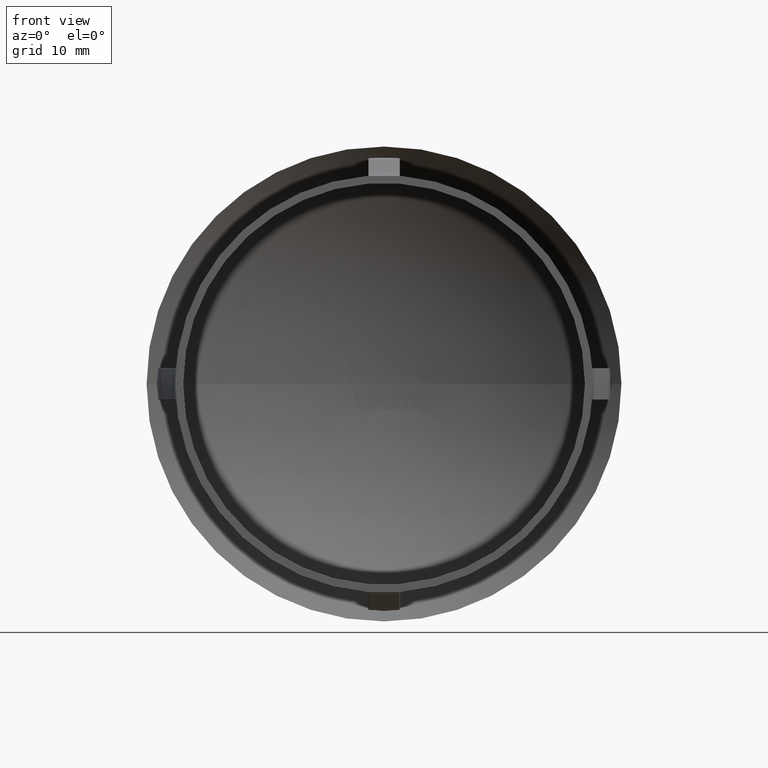
[diagram: clean part render]
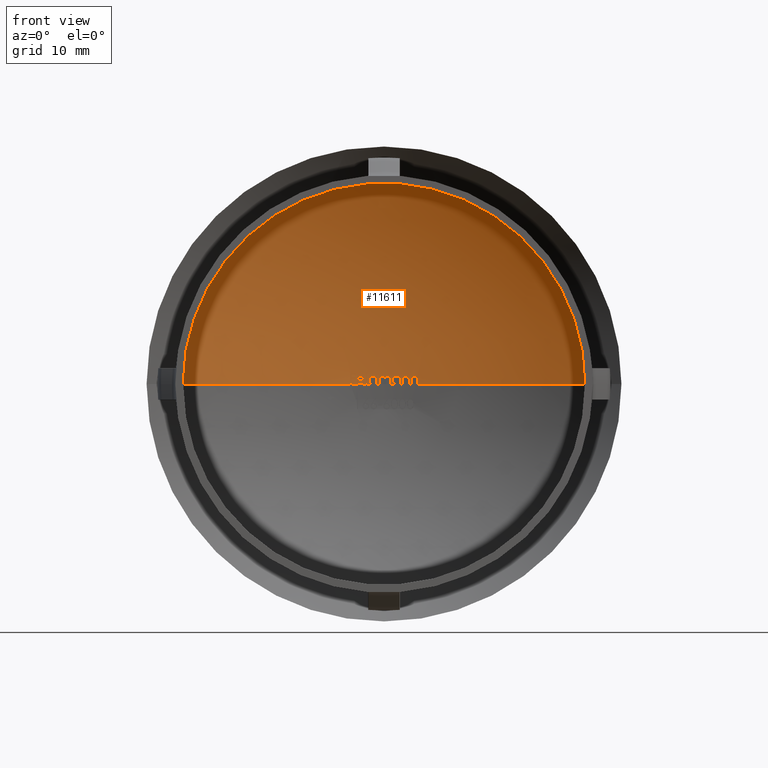
[diagram: same view with one face highlighted and labeled with its STEP entity id]
A machine part, front view. The second image highlights one B-rep face of the part: STEP entity #11611.
In plain terms, the highlighted spherical surface has radius 47.5 mm.
Its self-contained STEP definition (entity closure, byte-faithful):
#17 = AXIS2_PLACEMENT_3D ( 'NONE', #9071, #5553, #12505 ) ;
#51 = VERTEX_POINT ( 'NONE', #13399 ) ;
#61 = AXIS2_PLACEMENT_3D ( 'NONE', #14439, #14531, #887 ) ;
#97 = CARTESIAN_POINT ( 'NONE',  ( 0.8223212519504287100, 34.28940212233385400, 0.5773733154839545400 ) ) ;
#121 = AXIS2_PLACEMENT_3D ( 'NONE', #5200, #13086, #14088 ) ;
#138 = CARTESIAN_POINT ( 'NONE',  ( -4.163795405982908100, 34.10225455349952000, 1.187232905982905900 ) ) ;
#141 = CARTESIAN_POINT ( 'NONE',  ( -3.638020833333337500, -13.20000000000000300, 0.0000000000000000000 ) ) ;
#164 = ORIENTED_EDGE ( 'NONE', *, *, #13259, .T. ) ;
#185 = DIRECTION ( 'NONE',  ( -1.224646799147353200E-016, 3.305470560986731600E-031, -1.000000000000000000 ) ) ;
#189 = ORIENTED_EDGE ( 'NONE', *, *, #3391, .T. ) ;
#235 = DIRECTION ( 'NONE',  ( 1.000000000000000000, -2.721134864277343100E-015, 0.0000000000000000000 ) ) ;
#358 = ORIENTED_EDGE ( 'NONE', *, *, #916, .T. ) ;
#364 = AXIS2_PLACEMENT_3D ( 'NONE', #3984, #2873, #13008 ) ;
#421 = B_SPLINE_CURVE_WITH_KNOTS ( 'NONE', 3,
 ( #7646, #3136, #7446, #652, #7537, #8593, #10894, #8694, #1879, #9821 ),
 .UNSPECIFIED., .F., .F.,
 ( 4, 2, 2, 2, 4 ),
 ( 5.421010862427522200E-020, 0.0001965277937875503900, 0.0003930555875751007300, 0.0005895833813626509500, 0.0007861111751502013400 ),
 .UNSPECIFIED. ) ;
#425 = DIRECTION ( 'NONE',  ( 0.0000000000000000000, 0.0000000000000000000, -1.000000000000000000 ) ) ;
#467 = SPHERICAL_SURFACE ( 'NONE', #2848, 47.50000000000000000 ) ;
#468 = CARTESIAN_POINT ( 'NONE',  ( -3.222889656596926900, 34.18153855384412100, 0.9241709045039939700 ) ) ;
#501 = VERTEX_POINT ( 'NONE', #10780 ) ;
#514 = B_SPLINE_CURVE_WITH_KNOTS ( 'NONE', 3,
 ( #12263, #6755, #4340, #14658, #13458, #2129, #7746, #7886, #1110, #5472 ),
 .UNSPECIFIED., .F., .F.,
 ( 4, 2, 2, 2, 4 ),
 ( 5.421010862427522200E-019, 0.0001082860871809557700, 0.0002165721743619110000, 0.0003248582615428662200, 0.0004331443487238214700 ),
 .UNSPECIFIED. ) ;
#546 = VERTEX_POINT ( 'NONE', #9912 ) ;
#575 = CARTESIAN_POINT ( 'NONE',  ( 3.197048611111115200, 34.18971546563283700, 0.4937086838942308900 ) ) ;
#580 = CARTESIAN_POINT ( 'NONE',  ( -2.535590277777779000, 34.23161741887379600, 0.2499019264155981600 ) ) ;
#598 = EDGE_CURVE ( 'NONE', #10880, #6068, #2197, .T. ) ;
#615 = CIRCLE ( 'NONE', #3481, 47.36047724016548000 ) ;
#649 = CARTESIAN_POINT ( 'NONE',  ( 0.8225827991453027500, 34.28998992933809800, 0.5236545138888890600 ) ) ;
#652 = CARTESIAN_POINT ( 'NONE',  ( 1.124259724702031600, 34.28098455349844200, 0.7392620738548945100 ) ) ;
#700 = ORIENTED_EDGE ( 'NONE', *, *, #5471, .T. ) ;
#716 = ORIENTED_EDGE ( 'NONE', *, *, #11159, .T. ) ;
#725 = CARTESIAN_POINT ( 'NONE',  ( 1.060029380341882500, 34.28568330453462900, 0.4860234708867521300 ) ) ;
#765 = CARTESIAN_POINT ( 'NONE',  ( -2.638657815983066700, 34.21903138479557800, 0.8510859277315374600 ) ) ;
#815 = CIRCLE ( 'NONE', #8095, 47.50000000000000000 ) ;
#818 = DIRECTION ( 'NONE',  ( 1.000000000000000000, -2.449293598294745400E-017, 0.0000000000000000000 ) ) ;
#833 = ORIENTED_EDGE ( 'NONE', *, *, #13194, .T. ) ;
#834 = CARTESIAN_POINT ( 'NONE',  ( -1.839302732424548100, 34.26388378676027500, 0.2228968924731581600 ) ) ;
#843 = CARTESIAN_POINT ( 'NONE',  ( 1.061517860138057300, 34.28621435465115800, 0.4308921622717257200 ) ) ;
#845 = CARTESIAN_POINT ( 'NONE',  ( 4.096754033539593100, 34.11330803638982400, 0.9582917783875512000 ) ) ;
#850 = DIRECTION ( 'NONE',  ( -1.000000000000000000, 2.449293598294745400E-017, 0.0000000000000000000 ) ) ;
#854 = VERTEX_POINT ( 'NONE', #2641 ) ;
#861 = CARTESIAN_POINT ( 'NONE',  ( -3.307475868296350500, 34.18391375480697300, 0.2783879010358446500 ) ) ;
#863 = EDGE_CURVE ( 'NONE', #6245, #1628, #615, .T. ) ;
#867 = AXIS2_PLACEMENT_3D ( 'NONE', #7704, #1989, #14468 ) ;
#869 = CARTESIAN_POINT ( 'NONE',  ( 0.4206739996751359100, 34.28807779150919500, 0.9781994563160432100 ) ) ;
#873 = DIRECTION ( 'NONE',  ( 0.0000000000000000000, 0.0000000000000000000, -1.000000000000000000 ) ) ;
#887 = DIRECTION ( 'NONE',  ( -2.746881105410717300E-017, -1.000000000000000000, 0.0000000000000000000 ) ) ;
#903 = CARTESIAN_POINT ( 'NONE',  ( 4.314287152944414700, 34.09977303040550100, 0.6097391370073814700 ) ) ;
#916 = EDGE_CURVE ( 'NONE', #13455, #3397, #10529, .T. ) ;
#937 = CARTESIAN_POINT ( 'NONE',  ( -1.738051402140591700, 34.26822338836434800, 0.09419359275413737000 ) ) ;
#938 = CARTESIAN_POINT ( 'NONE',  ( 0.8225827991453027500, 34.29287691368622100, 0.0000000000000000000 ) ) ;
#946 = CARTESIAN_POINT ( 'NONE',  ( 1.060029380341882500, 34.28568330453462900, 0.4860234708867521300 ) ) ;
#950 = CARTESIAN_POINT ( 'NONE',  ( -1.009147970085469700, 34.28287863791199900, 0.7796516092414529400 ) ) ;
#968 = B_SPLINE_CURVE_WITH_KNOTS ( 'NONE', 3,
 ( #5047, #3764, #9494, #8313, #468, #1700, #7310, #12882, #11833, #5091 ),
 .UNSPECIFIED., .F., .F.,
 ( 4, 2, 2, 2, 4 ),
 ( 0.0000000000000000000, 0.0001088500035423341500, 0.0002177000070846683100, 0.0003265500106270024200, 0.0004354000141693367200 ),
 .UNSPECIFIED. ) ;
#975 = AXIS2_PLACEMENT_3D ( 'NONE', #7645, #3190, #9868 ) ;
#985 = CARTESIAN_POINT ( 'NONE',  ( -2.606990035834716200, 34.22825907705938400, 0.1359695740924832800 ) ) ;
#1003 = AXIS2_PLACEMENT_3D ( 'NONE', #9888, #873, #12080 ) ;
#1008 = CIRCLE ( 'NONE', #17, 47.49016109295277500 ) ;
#1034 = ORIENTED_EDGE ( 'NONE', *, *, #3436, .T. ) ;
#1039 = EDGE_CURVE ( 'NONE', #546, #14347, #5586, .T. ) ;
#1049 = CARTESIAN_POINT ( 'NONE',  ( 0.8225827991453027500, 34.28998992933809800, 0.5236545138888890600 ) ) ;
#1079 = CARTESIAN_POINT ( 'NONE',  ( 1.605872586928125200, 34.26269071144857700, 0.9826581680581428800 ) ) ;
#1091 = EDGE_CURVE ( 'NONE', #1614, #13204, #5071, .T. ) ;
#1100 = CARTESIAN_POINT ( 'NONE',  ( 0.6261611303854465200, 34.28619261103101900, 0.9592427485081112000 ) ) ;
#1110 = CARTESIAN_POINT ( 'NONE',  ( 3.918789100211700600, 34.12788849940959300, 0.9825384782788887400 ) ) ;
#1111 = AXIS2_PLACEMENT_3D ( 'NONE', #7216, #425, #3105 ) ;
#1162 = CARTESIAN_POINT ( 'NONE',  ( -1.804708447518663000, 34.25911721053241600, 0.7934544959974535500 ) ) ;
#1173 = CARTESIAN_POINT ( 'NONE',  ( 2.835578592414533400, 34.20508215437571000, 0.9837072649572650200 ) ) ;
#1209 = CIRCLE ( 'NONE', #6454, 47.49016109295277500 ) ;
#1227 = CARTESIAN_POINT ( 'NONE',  ( 2.467748397435900900, 34.22923533561442600, 0.7923719618055555800 ) ) ;
#1238 = EDGE_CURVE ( 'NONE', #13550, #11416, #13524, .T. ) ;
#1297 = DIRECTION ( 'NONE',  ( -2.747106200777928300E-017, -1.000000000000000000, 0.0000000000000000000 ) ) ;
#1303 = ORIENTED_EDGE ( 'NONE', *, *, #11313, .T. ) ;
#1374 = EDGE_CURVE ( 'NONE', #10880, #6928, #3822, .T. ) ;
#1391 = DIRECTION ( 'NONE',  ( -1.000000000000000000, 2.449293598294745400E-017, 0.0000000000000000000 ) ) ;
#1409 = CARTESIAN_POINT ( 'NONE',  ( -1.009147970085470000, 34.26989163757531300, 1.356837606837606900 ) ) ;
#1465 = CARTESIAN_POINT ( 'NONE',  ( -2.853377123046939800, 34.21412394168429200, 0.1192108882755282400 ) ) ;
#1509 = VERTEX_POINT ( 'NONE', #3421 ) ;
#1521 = CARTESIAN_POINT ( 'NONE',  ( 2.077657585470087800, 34.24469137419004700, 0.9667467948717949300 ) ) ;
#1524 = ORIENTED_EDGE ( 'NONE', *, *, #10002, .T. ) ;
#1562 = DIRECTION ( 'NONE',  ( -1.000000000000000000, 0.0000000000000000000, 1.224646799147353200E-016 ) ) ;
#1589 = ORIENTED_EDGE ( 'NONE', *, *, #12246, .T. ) ;
#1605 = CARTESIAN_POINT ( 'NONE',  ( -3.216132909246871100, 34.19070967687012100, 0.1712929441667793700 ) ) ;
#1614 = VERTEX_POINT ( 'NONE', #8016 ) ;
#1628 = VERTEX_POINT ( 'NONE', #8409 ) ;
#1653 = CARTESIAN_POINT ( 'NONE',  ( -2.996968065571583100, 34.20525104608459800, 0.1017628205128205100 ) ) ;
#1695 = CARTESIAN_POINT ( 'NONE',  ( -3.466846578263387700, 34.17028494866636400, 0.5389548035219858800 ) ) ;
#1700 = CARTESIAN_POINT ( 'NONE',  ( -3.157566549054814200, 34.18532877195171000, 0.9548277284846435900 ) ) ;
#1737 = CARTESIAN_POINT ( 'NONE',  ( -0.6190571581196555600, -13.20000000000000300, 0.0000000000000000000 ) ) ;
#1747 = CARTESIAN_POINT ( 'NONE',  ( -3.686186865433533300E-015, -13.20000000000000300, 0.0000000000000000000 ) ) ;
#1758 = ORIENTED_EDGE ( 'NONE', *, *, #12538, .T. ) ;
#1774 = DIRECTION ( 'NONE',  ( 0.0000000000000000000, 0.0000000000000000000, -1.000000000000000000 ) ) ;
#1833 = CARTESIAN_POINT ( 'NONE',  ( -3.391891247830264100, 34.17273178863187900, 0.7568023818005286100 ) ) ;
#1868 = CARTESIAN_POINT ( 'NONE',  ( -3.638020833333336100, 34.14559411859971800, 1.187232905982905900 ) ) ;
#1871 = VERTEX_POINT ( 'NONE', #3506 ) ;
#1879 = CARTESIAN_POINT ( 'NONE',  ( 1.501468935670792900, 34.26615688985155100, 0.9818081976358753500 ) ) ;
#1893 = DIRECTION ( 'NONE',  ( 0.0000000000000000000, 0.0000000000000000000, -1.000000000000000000 ) ) ;
#1905 = VERTEX_POINT ( 'NONE', #4226 ) ;
#1912 = CARTESIAN_POINT ( 'NONE',  ( -1.906564151297722300, 34.25979768474223900, 0.4308827721735466500 ) ) ;
#1916 = CIRCLE ( 'NONE', #5044, 47.50000000000000000 ) ;
#1944 = CARTESIAN_POINT ( 'NONE',  ( -2.492733859039784500, 34.23106456042971500, 0.5778447293786518300 ) ) ;
#1989 = DIRECTION ( 'NONE',  ( -1.000000000000000000, 2.449293598294745400E-017, 0.0000000000000000000 ) ) ;
#1993 = CARTESIAN_POINT ( 'NONE',  ( 2.467748397435900900, 34.22923533561442600, 0.7923719618055555800 ) ) ;
#2018 = CARTESIAN_POINT ( 'NONE',  ( -4.163795405982909000, -13.20000000000000300, 0.0000000000000000000 ) ) ;
#2030 = CARTESIAN_POINT ( 'NONE',  ( 2.467748397435900900, 34.22600150214603300, 0.9667467948717949300 ) ) ;
#2052 = DIRECTION ( 'NONE',  ( 1.000000000000000000, 0.0000000000000000000, 0.0000000000000000000 ) ) ;
#2055 = CARTESIAN_POINT ( 'NONE',  ( -2.773214433135017900, 34.21902146684723100, 0.01692169089990994800 ) ) ;
#2066 = AXIS2_PLACEMENT_3D ( 'NONE', #6824, #8061, #13629 ) ;
#2090 = DIRECTION ( 'NONE',  ( -1.224646799147353200E-016, 3.305470560986731600E-031, -1.000000000000000000 ) ) ;
#2095 = CARTESIAN_POINT ( 'NONE',  ( 3.468416132478632500, 34.16333487167649000, 0.9667467948717949300 ) ) ;
#2096 = CIRCLE ( 'NONE', #10603, 47.49165341289099000 ) ;
#2129 = CARTESIAN_POINT ( 'NONE',  ( 3.778866453376737800, 34.13991273205983400, 0.9508519489239982700 ) ) ;
#2131 = CARTESIAN_POINT ( 'NONE',  ( 2.864567348710764800, 34.20337034580362000, 0.9826383791018691300 ) ) ;
#2149 = CARTESIAN_POINT ( 'NONE',  ( -2.568826679403049900, 34.23015128766613900, 0.1909471095671784200 ) ) ;
#2171 = CARTESIAN_POINT ( 'NONE',  ( -0.4175657901016657200, 34.28971205225373400, 0.8966150174490172800 ) ) ;
#2177 = CARTESIAN_POINT ( 'NONE',  ( 4.316439636752137200, 34.10347079086560000, 0.0000000000000000000 ) ) ;
#2193 = ORIENTED_EDGE ( 'NONE', *, *, #4445, .T. ) ;
#2197 = CIRCLE ( 'NONE', #2986, 47.50000000000000000 ) ;
#2218 = CARTESIAN_POINT ( 'NONE',  ( -0.3926844713761130600, 34.28954297853820100, 0.9165878460764289600 ) ) ;
#2234 = AXIS2_PLACEMENT_3D ( 'NONE', #3790, #13906, #9518 ) ;
#2240 = CARTESIAN_POINT ( 'NONE',  ( -2.145499465811968200, 34.23211806098132800, 1.356837606837606900 ) ) ;
#2344 = CIRCLE ( 'NONE', #61, 47.36435823231860100 ) ;
#2364 = CARTESIAN_POINT ( 'NONE',  ( 0.7916504732044310500, 34.28686425738944600, 0.7898987271288883100 ) ) ;
#2401 = DIRECTION ( 'NONE',  ( -2.699121545320764300E-015, -1.000000000000000000, -0.0000000000000000000 ) ) ;
#2406 = B_SPLINE_CURVE_WITH_KNOTS ( 'NONE', 3,
 ( #11446, #9133, #6898, #7929, #1100, #8026, #12410, #2364, #8974, #6742, #97, #1049 ),
 .UNSPECIFIED., .F., .F.,
 ( 4, 2, 2, 2, 2, 4 ),
 ( 1.084202172485504400E-019, 7.969940963806294200E-005, 0.0001593988192761258300, 0.0003187976385522516600, 0.0004781964578283774400, 0.0006375952771045033200 ),
 .UNSPECIFIED. ) ;
#2422 = CARTESIAN_POINT ( 'NONE',  ( -3.686186865433533300E-015, -13.20000000000000300, 0.6444978632478631800 ) ) ;
#2436 = CARTESIAN_POINT ( 'NONE',  ( -4.163795405982908100, 34.11071891707835100, 0.7801816239316239400 ) ) ;
#2442 = ORIENTED_EDGE ( 'NONE', *, *, #8202, .T. ) ;
#2445 = CARTESIAN_POINT ( 'NONE',  ( -3.174025732528798800, 34.19386180068318700, 0.01316570502961049600 ) ) ;
#2475 = AXIS2_PLACEMENT_3D ( 'NONE', #12743, #185, #1562 ) ;
#2527 = CIRCLE ( 'NONE', #7104, 47.49287691368622400 ) ;
#2581 = ORIENTED_EDGE ( 'NONE', *, *, #6252, .T. ) ;
#2627 = ORIENTED_EDGE ( 'NONE', *, *, #4984, .F. ) ;
#2636 = CARTESIAN_POINT ( 'NONE',  ( -3.686186865433533300E-015, -13.20000000000000300, 0.9667467948717949300 ) ) ;
#2641 = CARTESIAN_POINT ( 'NONE',  ( 0.4952987279647471100, 34.28722985379275900, 0.9837072649572650200 ) ) ;
#2666 = ORIENTED_EDGE ( 'NONE', *, *, #12359, .T. ) ;
#2682 = ORIENTED_EDGE ( 'NONE', *, *, #9525, .T. ) ;
#2685 = CARTESIAN_POINT ( 'NONE',  ( -25.49999999999991100, 26.87492981902789400, 0.0000000000000000000 ) ) ;
#2690 = EDGE_CURVE ( 'NONE', #9801, #3194, #8489, .T. ) ;
#2732 = ORIENTED_EDGE ( 'NONE', *, *, #6238, .T. ) ;
#2756 = ORIENTED_EDGE ( 'NONE', *, *, #10187, .T. ) ;
#2766 = VERTEX_POINT ( 'NONE', #938 ) ;
#2778 = VERTEX_POINT ( 'NONE', #11121 ) ;
#2781 = EDGE_CURVE ( 'NONE', #1871, #13193, #2344, .T. ) ;
#2788 = VERTEX_POINT ( 'NONE', #10046 ) ;
#2848 = AXIS2_PLACEMENT_3D ( 'NONE', #1747, #1893, #13265 ) ;
#2873 = DIRECTION ( 'NONE',  ( 1.000000000000000000, -2.449293598294745400E-017, 0.0000000000000000000 ) ) ;
#2895 = CARTESIAN_POINT ( 'NONE',  ( -3.686186865433533300E-015, -13.20000000000000300, 0.9667467948717949300 ) ) ;
#2923 = CIRCLE ( 'NONE', #6975, 47.49562740404919500 ) ;
#2938 = CARTESIAN_POINT ( 'NONE',  ( -2.794754309358944400, 34.20814752572077600, 0.9530461544928343600 ) ) ;
#2981 = DIRECTION ( 'NONE',  ( -2.511225244919211700E-017, -1.000000000000000000, 0.0000000000000000000 ) ) ;
#2986 = AXIS2_PLACEMENT_3D ( 'NONE', #6731, #11374, #13529 ) ;
#3031 = EDGE_CURVE ( 'NONE', #6928, #13550, #12076, .T. ) ;
#3079 = CARTESIAN_POINT ( 'NONE',  ( 3.983927060369947700, 34.12244277451629400, 0.9826395337244383500 ) ) ;
#3105 = DIRECTION ( 'NONE',  ( -1.000000000000000000, 0.0000000000000000000, 0.0000000000000000000 ) ) ;
#3132 = DIRECTION ( 'NONE',  ( -1.000000000000000000, 2.449293598294745400E-017, 0.0000000000000000000 ) ) ;
#3136 = CARTESIAN_POINT ( 'NONE',  ( 1.061893018835305500, 34.28496480821645100, 0.5521576783649895200 ) ) ;
#3148 = CARTESIAN_POINT ( 'NONE',  ( -2.484708867521369300, 34.23275787357273700, 0.4579326923076923500 ) ) ;
#3190 = DIRECTION ( 'NONE',  ( 1.000000000000000000, -2.449293598294745400E-017, 0.0000000000000000000 ) ) ;
#3193 = CARTESIAN_POINT ( 'NONE',  ( -0.4814565802278479900, 34.29041083991512600, 0.8246865197152429800 ) ) ;
#3194 = VERTEX_POINT ( 'NONE', #14616 ) ;
#3206 = ORIENTED_EDGE ( 'NONE', *, *, #10741, .T. ) ;
#3231 = CIRCLE ( 'NONE', #2234, 47.48157423141165600 ) ;
#3239 = CARTESIAN_POINT ( 'NONE',  ( -0.1669546274038425600, 34.28951932973483700, 0.9837072649572652400 ) ) ;
#3243 = CIRCLE ( 'NONE', #13907, 47.48927900457609800 ) ;
#3263 = CARTESIAN_POINT ( 'NONE',  ( -3.686186865433533300E-015, -13.20000000000000300, 0.4579326923076923500 ) ) ;
#3308 = CARTESIAN_POINT ( 'NONE',  ( 2.512868172038376500, 34.22594729505777900, 0.8486649656428986200 ) ) ;
#3312 = CARTESIAN_POINT ( 'NONE',  ( 1.911228968063997100, 34.25397961243137200, 0.8476149025507685500 ) ) ;
#3337 = VERTEX_POINT ( 'NONE', #6666 ) ;
#3368 = EDGE_CURVE ( 'NONE', #12654, #2766, #2527, .T. ) ;
#3391 = EDGE_CURVE ( 'NONE', #12559, #10661, #13255, .T. ) ;
#3397 = VERTEX_POINT ( 'NONE', #2240 ) ;
#3414 = DIRECTION ( 'NONE',  ( -1.000000000000000000, 2.449293598294745400E-017, 0.0000000000000000000 ) ) ;
#3421 = CARTESIAN_POINT ( 'NONE',  ( -4.163795405982908100, 34.11276181244743100, 0.6444978632478631800 ) ) ;
#3431 = B_SPLINE_CURVE_WITH_KNOTS ( 'NONE', 3,
 ( #1653, #8359, #1465, #13976, #5042, #6162, #7162, #9489 ),
 .UNSPECIFIED., .F., .F.,
 ( 4, 2, 2, 4 ),
 ( 0.0000000000000000000, 0.0002140826069531545800, 0.0003211239104297313100, 0.0004281652139063080200 ),
 .UNSPECIFIED. ) ;
#3436 = EDGE_CURVE ( 'NONE', #10459, #8659, #8035, .T. ) ;
#3446 = ORIENTED_EDGE ( 'NONE', *, *, #7478, .T. ) ;
#3454 = CARTESIAN_POINT ( 'NONE',  ( 2.799384404526830100, 34.20727140578041800, 0.9825380366775490200 ) ) ;
#3481 = AXIS2_PLACEMENT_3D ( 'NONE', #5095, #14023, #14068 ) ;
#3483 = CARTESIAN_POINT ( 'NONE',  ( 0.1407189002403882700, 34.29386638761484100, 0.7502357939369659300 ) ) ;
#3487 = VERTEX_POINT ( 'NONE', #2436 ) ;
#3493 = CARTESIAN_POINT ( 'NONE',  ( 4.316439636752137200, 34.10089428961911300, 0.4937086838942307800 ) ) ;
#3496 = CARTESIAN_POINT ( 'NONE',  ( -1.908052884615384400, 34.25917314255757200, 0.4860234708867521300 ) ) ;
#3506 = CARTESIAN_POINT ( 'NONE',  ( 3.587139423076923400, 34.15449114280515600, 0.9667467948717949300 ) ) ;
#3509 = VERTEX_POINT ( 'NONE', #2030 ) ;
#3566 = VERTEX_POINT ( 'NONE', #10113 ) ;
#3572 = EDGE_CURVE ( 'NONE', #3487, #6245, #4862, .T. ) ;
#3663 = CARTESIAN_POINT ( 'NONE',  ( -3.460913954292788000, 34.17230445010172000, 0.3736641923911518900 ) ) ;
#3728 = CARTESIAN_POINT ( 'NONE',  ( -0.8904246794871790700, 34.27226701558322500, 1.356837606837606900 ) ) ;
#3764 = CARTESIAN_POINT ( 'NONE',  ( -3.333772037803320200, 34.17558544985227100, 0.8313787213092936900 ) ) ;
#3790 = CARTESIAN_POINT ( 'NONE',  ( -3.686186865433533300E-015, -13.20000000000000300, 1.322916666666666700 ) ) ;
#3822 = CIRCLE ( 'NONE', #8031, 47.49596581010834500 ) ;
#3867 = CARTESIAN_POINT ( 'NONE',  ( -1.009147970085471100, -13.20000000000000300, 0.0000000000000000000 ) ) ;
#3904 = CIRCLE ( 'NONE', #6348, 25.50000000000001400 ) ;
#3939 = EDGE_CURVE ( 'NONE', #6079, #14514, #7480, .T. ) ;
#3945 = CIRCLE ( 'NONE', #13821, 47.50000000000000000 ) ;
#3963 = CARTESIAN_POINT ( 'NONE',  ( -3.468416132478634200, 34.17076096726479800, 0.4807233239850427500 ) ) ;
#3984 = CARTESIAN_POINT ( 'NONE',  ( 3.468416132478631100, -13.20000000000000300, 0.0000000000000000000 ) ) ;
#3996 = VERTEX_POINT ( 'NONE', #3728 ) ;
#3997 = CARTESIAN_POINT ( 'NONE',  ( -2.589916783520301200, 34.22270338909205400, 0.7934319911858973600 ) ) ;
#4055 = VERTEX_POINT ( 'NONE', #13123 ) ;
#4059 = CARTESIAN_POINT ( 'NONE',  ( 3.197048611111113800, -13.20000000000000300, 0.0000000000000000000 ) ) ;
#4066 = CARTESIAN_POINT ( 'NONE',  ( 3.587139423076923400, 34.15772985937513100, 0.7923719618055555800 ) ) ;
#4076 = CARTESIAN_POINT ( 'NONE',  ( -3.686186865433533300E-015, -13.20000000000000300, 1.356837606837606900 ) ) ;
#4089 = CARTESIAN_POINT ( 'NONE',  ( -1.212824540427234600, 34.27504191146851300, 0.9491577508199506900 ) ) ;
#4097 = ORIENTED_EDGE ( 'NONE', *, *, #12450, .T. ) ;
#4102 = CARTESIAN_POINT ( 'NONE',  ( -0.2014344442618630500, 34.28942470721219800, 0.9824233597717645400 ) ) ;
#4109 = VERTEX_POINT ( 'NONE', #2095 ) ;
#4129 = EDGE_CURVE ( 'NONE', #10859, #4817, #3243, .T. ) ;
#4146 = EDGE_CURVE ( 'NONE', #3337, #3194, #13847, .T. ) ;
#4165 = VERTEX_POINT ( 'NONE', #1521 ) ;
#4171 = CARTESIAN_POINT ( 'NONE',  ( 4.068941283821971000, 34.11550062588470700, 0.9684782032859702300 ) ) ;
#4192 = AXIS2_PLACEMENT_3D ( 'NONE', #3263, #11018, #2052 ) ;
#4226 = CARTESIAN_POINT ( 'NONE',  ( 1.429608896359917400, 34.27848163540456000, 5.596003845923761200E-012 ) ) ;
#4235 = CARTESIAN_POINT ( 'NONE',  ( -2.145499465811969500, -13.20000000000000300, 0.0000000000000000000 ) ) ;
#4243 = CARTESIAN_POINT ( 'NONE',  ( -3.177093590595868800, 34.19343216234345600, 0.1443681995019878400 ) ) ;
#4246 = CARTESIAN_POINT ( 'NONE',  ( -1.032804054451712300, 34.28187678686539600, 0.8100475987578521500 ) ) ;
#4282 = CARTESIAN_POINT ( 'NONE',  ( 4.218608881598893100, 34.10416514518981800, 0.8790003980294329700 ) ) ;
#4340 = CARTESIAN_POINT ( 'NONE',  ( 3.632770372375921900, 34.15329724908639300, 0.8482540936105796800 ) ) ;
#4367 = ORIENTED_EDGE ( 'NONE', *, *, #2781, .T. ) ;
#4371 = CARTESIAN_POINT ( 'NONE',  ( 1.102111744730451800, 34.28646406099735300, 0.2720993001405490600 ) ) ;
#4386 = CARTESIAN_POINT ( 'NONE',  ( -0.4619834938707250100, 34.29015329622291800, 0.8502597468962064300 ) ) ;
#4395 = CARTESIAN_POINT ( 'NONE',  ( 2.893454473597715500, 34.20165012120305200, 0.9809784692917458100 ) ) ;
#4400 = CIRCLE ( 'NONE', #867, 47.43585371685591000 ) ;
#4407 = VERTEX_POINT ( 'NONE', #11823 ) ;
#4424 = EDGE_CURVE ( 'NONE', #6672, #13031, #9391, .T. ) ;
#4432 = CARTESIAN_POINT ( 'NONE',  ( -4.163795405982908100, 34.11715130708013500, 0.0000000000000000000 ) ) ;
#4445 = EDGE_CURVE ( 'NONE', #13193, #11078, #514, .T. ) ;
#4453 = CARTESIAN_POINT ( 'NONE',  ( 3.178028358994409200, 34.18806100570988300, 0.7246999598740376800 ) ) ;
#4494 = CARTESIAN_POINT ( 'NONE',  ( -1.400298811431623700, 34.26916349858688400, 0.9837072649572650200 ) ) ;
#4498 = CARTESIAN_POINT ( 'NONE',  ( -0.5003338675213649900, -13.20000000000000300, 0.0000000000000000000 ) ) ;
#4514 = CARTESIAN_POINT ( 'NONE',  ( 1.718639001019854900, 34.25911524921915700, 0.9644292528052396100 ) ) ;
#4544 = ORIENTED_EDGE ( 'NONE', *, *, #12448, .T. ) ;
#4598 = CARTESIAN_POINT ( 'NONE',  ( -1.466605697636962400, 34.26724685342387700, 0.9818084161855480400 ) ) ;
#4608 = DIRECTION ( 'NONE',  ( -1.000000000000000000, 2.449293598294745400E-017, 0.0000000000000000000 ) ) ;
#4614 = CARTESIAN_POINT ( 'NONE',  ( -3.638020833333336100, 34.15405073539023600, 0.7801816239316239400 ) ) ;
#4627 = B_SPLINE_CURVE_WITH_KNOTS ( 'NONE', 3,
 ( #9987, #2131, #4395, #12266, #7798, #13359, #6610, #10079, #4453, #12321, #5572, #14606 ),
 .UNSPECIFIED., .F., .F.,
 ( 4, 2, 2, 2, 2, 4 ),
 ( 0.0000000000000000000, 8.641339010028222400E-005, 0.0001728267802005643900, 0.0003456535604011297100, 0.0005184803406016949400, 0.0006913071208022602800 ),
 .UNSPECIFIED. ) ;
#4645 = CARTESIAN_POINT ( 'NONE',  ( -1.654072426098024900, 34.26225846881459300, 0.9232147369909213800 ) ) ;
#4681 = DIRECTION ( 'NONE',  ( -1.000000000000000000, 0.0000000000000000000, 0.0000000000000000000 ) ) ;
#4700 = EDGE_CURVE ( 'NONE', #11308, #6079, #3231, .T. ) ;
#4710 = DIRECTION ( 'NONE',  ( -1.000000000000000000, 2.449293598294745400E-017, 0.0000000000000000000 ) ) ;
#4762 = CARTESIAN_POINT ( 'NONE',  ( -3.344763534565533100, 34.18191892152416500, 0.1382151894846739800 ) ) ;
#4817 = VERTEX_POINT ( 'NONE', #1409 ) ;
#4833 = CARTESIAN_POINT ( 'NONE',  ( 2.349025106837610000, 34.24188108673017400, 0.0000000000000000000 ) ) ;
#4862 = CIRCLE ( 'NONE', #10871, 47.49359237448436500 ) ;
#4883 = B_SPLINE_CURVE_WITH_KNOTS ( 'NONE', 3,
 ( #11245, #7656, #6512, #5422, #12224, #869, #5478, #7799 ),
 .UNSPECIFIED., .F., .F.,
 ( 4, 2, 2, 4 ),
 ( 1.212174879515270100E-019, 0.0002223540388317606600, 0.0003335310582476411100, 0.0004447080776635215900 ),
 .UNSPECIFIED. ) ;
#4906 = DIRECTION ( 'NONE',  ( 1.000000000000000000, -2.449293598294745400E-017, 0.0000000000000000000 ) ) ;
#4911 = EDGE_CURVE ( 'NONE', #11078, #9520, #11923, .T. ) ;
#4924 = DIRECTION ( 'NONE',  ( 0.0000000000000000000, -0.0000000000000000000, 1.000000000000000000 ) ) ;
#4984 = EDGE_CURVE ( 'NONE', #11301, #6447, #3945, .T. ) ;
#4998 = ORIENTED_EDGE ( 'NONE', *, *, #4700, .T. ) ;
#5042 = CARTESIAN_POINT ( 'NONE',  ( -2.730400813408909500, 34.22108046049344000, 0.1931867733401496900 ) ) ;
#5044 = AXIS2_PLACEMENT_3D ( 'NONE', #8521, #9643, #10816 ) ;
#5047 = CARTESIAN_POINT ( 'NONE',  ( -3.357113047542736900, 34.17440422936886100, 0.8035022702991453400 ) ) ;
#5071 = CIRCLE ( 'NONE', #14071, 47.45958887757431200 ) ;
#5082 = CARTESIAN_POINT ( 'NONE',  ( -3.043874211611385900, 34.20228326607315200, 0.1028647429251225300 ) ) ;
#5091 = CARTESIAN_POINT ( 'NONE',  ( -2.979212573450856500, 34.19627213673099000, 0.9837072649572650200 ) ) ;
#5095 = CARTESIAN_POINT ( 'NONE',  ( -3.638020833333337500, -13.20000000000000300, 0.0000000000000000000 ) ) ;
#5200 = CARTESIAN_POINT ( 'NONE',  ( 2.349025106837608700, -13.20000000000000300, 0.0000000000000000000 ) ) ;
#5201 = VERTEX_POINT ( 'NONE', #10503 ) ;
#5204 = CARTESIAN_POINT ( 'NONE',  ( -0.5003338675213637700, 34.28752537936269100, 0.9667467948717949300 ) ) ;
#5225 = CARTESIAN_POINT ( 'NONE',  ( -3.459341203514274100, 34.17013266992834300, 0.5973270917110825600 ) ) ;
#5246 = VERTEX_POINT ( 'NONE', #13893 ) ;
#5278 = CARTESIAN_POINT ( 'NONE',  ( -2.613735054577699400, 34.22091145986774300, 0.8227864770027129000 ) ) ;
#5281 = CARTESIAN_POINT ( 'NONE',  ( 1.958934294871795600, -13.20000000000000300, 0.0000000000000000000 ) ) ;
#5283 = ORIENTED_EDGE ( 'NONE', *, *, #8689, .F. ) ;
#5324 = CARTESIAN_POINT ( 'NONE',  ( -2.727493154466646500, 34.21270710728153100, 0.9205358734192340400 ) ) ;
#5333 = CARTESIAN_POINT ( 'NONE',  ( -0.1669546274038425600, 34.28951932973483700, 0.9837072649572652400 ) ) ;
#5351 = CARTESIAN_POINT ( 'NONE',  ( -3.686186865433533300E-015, -13.20000000000000300, 0.0000000000000000000 ) ) ;
#5369 = CARTESIAN_POINT ( 'NONE',  ( -1.114373706342330700, 34.27856736875075000, 0.8918001694001175300 ) ) ;
#5417 = EDGE_CURVE ( 'NONE', #2778, #9801, #13831, .T. ) ;
#5420 = AXIS2_PLACEMENT_3D ( 'NONE', #4059, #8527, #9695 ) ;
#5422 = CARTESIAN_POINT ( 'NONE',  ( 0.3162070829082441200, 34.28969277695235000, 0.9383327661137818000 ) ) ;
#5471 = EDGE_CURVE ( 'NONE', #51, #1614, #12384, .T. ) ;
#5472 = CARTESIAN_POINT ( 'NONE',  ( 3.954969618055555400, 34.12484057381627900, 0.9837072649572650200 ) ) ;
#5478 = CARTESIAN_POINT ( 'NONE',  ( 0.4577561397715397800, 34.28765197748508300, 0.9822325491766233900 ) ) ;
#5501 = CARTESIAN_POINT ( 'NONE',  ( 1.067973578301117900, 34.28654009670381700, 0.3753657197922353200 ) ) ;
#5553 = DIRECTION ( 'NONE',  ( 0.0000000000000000000, 0.0000000000000000000, -1.000000000000000000 ) ) ;
#5560 = ORIENTED_EDGE ( 'NONE', *, *, #3572, .T. ) ;
#5572 = CARTESIAN_POINT ( 'NONE',  ( 3.196878018885634700, 34.18912244131993100, 0.5517361118582755400 ) ) ;
#5586 = CIRCLE ( 'NONE', #13396, 47.50000000000000000 ) ;
#5626 = DIRECTION ( 'NONE',  ( -1.000000000000000000, 2.449293598294745400E-017, 0.0000000000000000000 ) ) ;
#5637 = CARTESIAN_POINT ( 'NONE',  ( 1.958934294871796900, 34.25304881960300900, 0.7878668369391025300 ) ) ;
#5641 = CARTESIAN_POINT ( 'NONE',  ( -2.838786933995814700, 34.21509557876451900, -1.066828864992828700E-013 ) ) ;
#5647 = EDGE_CURVE ( 'NONE', #13031, #2778, #3431, .T. ) ;
#5654 = CARTESIAN_POINT ( 'NONE',  ( -2.484708867521369300, 34.23275787357273700, 0.4579326923076923500 ) ) ;
#5662 = CARTESIAN_POINT ( 'NONE',  ( 0.07947432618185880400, 34.29189141683789900, 0.8747217767707282700 ) ) ;
#5822 = EDGE_CURVE ( 'NONE', #10260, #3566, #13931, .T. ) ;
#5887 = CARTESIAN_POINT ( 'NONE',  ( -3.428729110618136600, 34.17533008055650600, 0.2733051136347504100 ) ) ;
#5980 = CARTESIAN_POINT ( 'NONE',  ( -3.466895755314417700, 34.17141453000364500, 0.4272903775981304300 ) ) ;
#6068 = VERTEX_POINT ( 'NONE', #6341 ) ;
#6072 = DIRECTION ( 'NONE',  ( 1.000000000000000000, -2.449293598294745400E-017, 0.0000000000000000000 ) ) ;
#6079 = VERTEX_POINT ( 'NONE', #7482 ) ;
#6117 = CARTESIAN_POINT ( 'NONE',  ( -0.5003338675213637700, 34.29064847938588700, 0.7987321380876067900 ) ) ;
#6146 = ORIENTED_EDGE ( 'NONE', *, *, #10315, .T. ) ;
#6157 = VERTEX_POINT ( 'NONE', #4432 ) ;
#6158 = CIRCLE ( 'NONE', #10914, 47.45152086121371600 ) ;
#6162 = CARTESIAN_POINT ( 'NONE',  ( -2.682353481226537700, 34.22357681867973900, 0.2462179855006558800 ) ) ;
#6213 = CARTESIAN_POINT ( 'NONE',  ( -3.421962229536248800, 34.17135035249482700, 0.7061520121416905400 ) ) ;
#6238 = EDGE_CURVE ( 'NONE', #14514, #8565, #8719, .T. ) ;
#6245 = VERTEX_POINT ( 'NONE', #4614 ) ;
#6252 = EDGE_CURVE ( 'NONE', #9520, #10459, #9955, .T. ) ;
#6267 = DIRECTION ( 'NONE',  ( 0.0000000000000000000, 0.0000000000000000000, -1.000000000000000000 ) ) ;
#6323 = AXIS2_PLACEMENT_3D ( 'NONE', #11747, #10612, #7131 ) ;
#6341 = CARTESIAN_POINT ( 'NONE',  ( -0.8904246794871790700, 34.29165341289098000, 0.0000000000000000000 ) ) ;
#6343 = DIRECTION ( 'NONE',  ( -2.741835421435483200E-017, -1.000000000000000000, 0.0000000000000000000 ) ) ;
#6348 = AXIS2_PLACEMENT_3D ( 'NONE', #10104, #2401, #235 ) ;
#6356 = CARTESIAN_POINT ( 'NONE',  ( -2.589916783520301200, 34.22270338909205400, 0.7934319911858973600 ) ) ;
#6361 = ORIENTED_EDGE ( 'NONE', *, *, #1091, .T. ) ;
#6447 = VERTEX_POINT ( 'NONE', #2685 ) ;
#6450 = EDGE_CURVE ( 'NONE', #5246, #3509, #7988, .T. ) ;
#6454 = AXIS2_PLACEMENT_3D ( 'NONE', #2895, #6267, #8570 ) ;
#6455 = ORIENTED_EDGE ( 'NONE', *, *, #11767, .T. ) ;
#6499 = FACE_OUTER_BOUND ( 'NONE', #14025, .T. ) ;
#6509 = CARTESIAN_POINT ( 'NONE',  ( -1.009147970085469700, 34.28287863791199900, 0.7796516092414529400 ) ) ;
#6512 = CARTESIAN_POINT ( 'NONE',  ( 0.2241133967070805500, 34.29145203992797500, 0.8759324853526805300 ) ) ;
#6561 = CARTESIAN_POINT ( 'NONE',  ( -1.249561578824010000, 34.27381649034364800, 0.9627028619212926200 ) ) ;
#6590 = CARTESIAN_POINT ( 'NONE',  ( 3.954969618055555400, 34.12484057381627900, 0.9837072649572650200 ) ) ;
#6610 = CARTESIAN_POINT ( 'NONE',  ( 3.099356075212023500, 34.19066317851958600, 0.8788488322674317100 ) ) ;
#6623 = CARTESIAN_POINT ( 'NONE',  ( -1.644083047231947000, 34.27165634408280000, 0.02764825461206349800 ) ) ;
#6631 = CARTESIAN_POINT ( 'NONE',  ( 1.429608896359917400, 34.27848163540456000, 5.596003845923761200E-012 ) ) ;
#6646 = ORIENTED_EDGE ( 'NONE', *, *, #12278, .T. ) ;
#6652 = CARTESIAN_POINT ( 'NONE',  ( -3.349692841880343800, 34.17952992078299700, 0.4579326923076923500 ) ) ;
#6666 = CARTESIAN_POINT ( 'NONE',  ( -2.264222756410259100, 34.24600399727414400, 0.0000000000000000000 ) ) ;
#6672 = VERTEX_POINT ( 'NONE', #6652 ) ;
#6709 = DIRECTION ( 'NONE',  ( -1.000000000000000000, 2.449293598294745400E-017, 0.0000000000000000000 ) ) ;
#6720 = CARTESIAN_POINT ( 'NONE',  ( 2.659421658845366300, 34.21597498985561000, 0.9508297832051579900 ) ) ;
#6725 = ORIENTED_EDGE ( 'NONE', *, *, #4911, .T. ) ;
#6731 = CARTESIAN_POINT ( 'NONE',  ( -3.686186865433533300E-015, -13.20000000000000300, 0.0000000000000000000 ) ) ;
#6742 = CARTESIAN_POINT ( 'NONE',  ( 0.8204343173803300100, 34.28875316661705600, 0.6309343921867823800 ) ) ;
#6755 = CARTESIAN_POINT ( 'NONE',  ( 3.609712475006254800, 34.15554883849098600, 0.8205348883732055400 ) ) ;
#6777 = CARTESIAN_POINT ( 'NONE',  ( 1.822508010063504500, 34.25613302754298000, 0.9194200936915849500 ) ) ;
#6795 = CARTESIAN_POINT ( 'NONE',  ( -1.538473368597440100, 34.27507872235828800, 5.619811400972237800E-012 ) ) ;
#6824 = CARTESIAN_POINT ( 'NONE',  ( -3.686186865433533300E-015, -13.20000000000000300, 1.187232905982905900 ) ) ;
#6836 = ORIENTED_EDGE ( 'NONE', *, *, #10297, .T. ) ;
#6845 = CARTESIAN_POINT ( 'NONE',  ( -0.09787621149493348800, 34.28982768265181800, 0.9787198561876339100 ) ) ;
#6898 = CARTESIAN_POINT ( 'NONE',  ( 0.5487580481609918300, 34.28670362298225200, 0.9810972519641778500 ) ) ;
#6928 = VERTEX_POINT ( 'NONE', #11587 ) ;
#6975 = AXIS2_PLACEMENT_3D ( 'NONE', #2422, #13756, #8187 ) ;
#6985 = DIRECTION ( 'NONE',  ( -2.741660998022738100E-017, -1.000000000000000000, 0.0000000000000000000 ) ) ;
#7025 = CIRCLE ( 'NONE', #975, 47.30655381248387000 ) ;
#7032 = CARTESIAN_POINT ( 'NONE',  ( -3.468416132478634200, 34.17076096726479800, 0.4807233239850427500 ) ) ;
#7077 = CARTESIAN_POINT ( 'NONE',  ( -4.282518696581198500, 34.08805266773509100, 1.322916666666666700 ) ) ;
#7083 = AXIS2_PLACEMENT_3D ( 'NONE', #4498, #5626, #14519 ) ;
#7104 = AXIS2_PLACEMENT_3D ( 'NONE', #14570, #4608, #12484 ) ;
#7119 = DIRECTION ( 'NONE',  ( 2.742154232962068800E-017, 1.000000000000000000, 0.0000000000000000000 ) ) ;
#7125 = ORIENTED_EDGE ( 'NONE', *, *, #863, .T. ) ;
#7131 = DIRECTION ( 'NONE',  ( 1.000000000000000000, 0.0000000000000000000, 0.0000000000000000000 ) ) ;
#7162 = CARTESIAN_POINT ( 'NONE',  ( -2.661128317594600100, 34.22461231529717900, 0.2753909030455864400 ) ) ;
#7216 = CARTESIAN_POINT ( 'NONE',  ( -3.686186865433533300E-015, -13.20000000000000300, 0.9667467948717949300 ) ) ;
#7245 = EDGE_CURVE ( 'NONE', #10215, #12564, #14399, .T. ) ;
#7249 = ORIENTED_EDGE ( 'NONE', *, *, #598, .F. ) ;
#7308 = DIRECTION ( 'NONE',  ( -1.000000000000000000, 0.0000000000000000000, 0.0000000000000000000 ) ) ;
#7310 = CARTESIAN_POINT ( 'NONE',  ( -3.122589998698599900, 34.18741425555622000, 0.9662839570493538800 ) ) ;
#7446 = CARTESIAN_POINT ( 'NONE',  ( 1.072053259385796100, 34.28392568402870200, 0.6179530359696754300 ) ) ;
#7478 = EDGE_CURVE ( 'NONE', #501, #4109, #7973, .T. ) ;
#7480 = CIRCLE ( 'NONE', #13710, 47.36047724016548000 ) ;
#7482 = CARTESIAN_POINT ( 'NONE',  ( -3.638020833333336100, 34.14199716857420700, 1.322916666666666700 ) ) ;
#7537 = CARTESIAN_POINT ( 'NONE',  ( 1.163387861298876600, 34.27916685363142300, 0.7934701258597581800 ) ) ;
#7541 = ORIENTED_EDGE ( 'NONE', *, *, #4424, .T. ) ;
#7552 = CARTESIAN_POINT ( 'NONE',  ( -2.904082845709892200, 34.20101780417827800, 0.9804316413166013200 ) ) ;
#7583 = DIRECTION ( 'NONE',  ( -1.833081058408135600E-017, -1.000000000000000000, 0.0000000000000000000 ) ) ;
#7606 = CARTESIAN_POINT ( 'NONE',  ( -2.830191130185269400, 34.20580889350072300, 0.9647453392350463500 ) ) ;
#7645 = CARTESIAN_POINT ( 'NONE',  ( -4.282518696581199400, -13.20000000000000300, 0.0000000000000000000 ) ) ;
#7646 = CARTESIAN_POINT ( 'NONE',  ( 1.060029380341882500, 34.28568330453462900, 0.4860234708867521300 ) ) ;
#7656 = CARTESIAN_POINT ( 'NONE',  ( 0.1770064704112343800, 34.29272523682372100, 0.8156703101677432700 ) ) ;
#7664 = AXIS2_PLACEMENT_3D ( 'NONE', #11455, #12532, #11553 ) ;
#7704 = CARTESIAN_POINT ( 'NONE',  ( 2.467748397435900000, -13.20000000000000300, 0.0000000000000000000 ) ) ;
#7719 = CARTESIAN_POINT ( 'NONE',  ( -1.538473368597440100, 34.27507872235828800, 5.619811400972237800E-012 ) ) ;
#7727 = EDGE_CURVE ( 'NONE', #4055, #6157, #8160, .T. ) ;
#7731 = DIRECTION ( 'NONE',  ( 0.0000000000000000000, -0.0000000000000000000, 1.000000000000000000 ) ) ;
#7746 = CARTESIAN_POINT ( 'NONE',  ( 3.813161710653432100, 34.13690903577478500, 0.9633925453972724800 ) ) ;
#7766 = CARTESIAN_POINT ( 'NONE',  ( -1.865965199265176700, 34.26258631966842900, 0.2720882600481651600 ) ) ;
#7787 = AXIS2_PLACEMENT_3D ( 'NONE', #13264, #6709, #11199 ) ;
#7791 = ORIENTED_EDGE ( 'NONE', *, *, #7920, .T. ) ;
#7798 = CARTESIAN_POINT ( 'NONE',  ( 2.977497306300733700, 34.19691048721080100, 0.9582374703780993700 ) ) ;
#7799 = CARTESIAN_POINT ( 'NONE',  ( 0.4952987279647471100, 34.28722985379275900, 0.9837072649572650200 ) ) ;
#7886 = CARTESIAN_POINT ( 'NONE',  ( 3.882663512653433900, 34.13092073823658300, 0.9798727507246314300 ) ) ;
#7889 = CARTESIAN_POINT ( 'NONE',  ( -1.533060930651241700, 34.26534595846897700, 0.9720685303518555900 ) ) ;
#7910 = CARTESIAN_POINT ( 'NONE',  ( -4.282518696581198500, 34.10655381248386700, 0.0000000000000000000 ) ) ;
#7920 = EDGE_CURVE ( 'NONE', #1905, #10247, #8793, .T. ) ;
#7929 = CARTESIAN_POINT ( 'NONE',  ( 0.6005985209493796000, 34.28632366653369000, 0.9690481123374519200 ) ) ;
#7946 = CARTESIAN_POINT ( 'NONE',  ( -1.843836507170960100, 34.25848873457346100, 0.7392389148050195800 ) ) ;
#7965 = AXIS2_PLACEMENT_3D ( 'NONE', #12391, #3414, #11261 ) ;
#7973 = CIRCLE ( 'NONE', #364, 47.37320011918090800 ) ;
#7988 = CIRCLE ( 'NONE', #8735, 47.49016109295277500 ) ;
#8016 = CARTESIAN_POINT ( 'NONE',  ( 1.958934294871796900, 34.25304881960300900, 0.7878668369391025300 ) ) ;
#8026 = CARTESIAN_POINT ( 'NONE',  ( 0.6966482579200606900, 34.28598717052310700, 0.9211710267236554700 ) ) ;
#8031 = AXIS2_PLACEMENT_3D ( 'NONE', #1737, #13960, #8595 ) ;
#8035 = CIRCLE ( 'NONE', #7664, 47.50000000000000000 ) ;
#8061 = DIRECTION ( 'NONE',  ( 0.0000000000000000000, -0.0000000000000000000, 1.000000000000000000 ) ) ;
#8095 = AXIS2_PLACEMENT_3D ( 'NONE', #8755, #11883, #10756 ) ;
#8096 = CARTESIAN_POINT ( 'NONE',  ( -1.896035218776473500, 34.25816656843402800, 0.6179293000872609900 ) ) ;
#8098 = EDGE_CURVE ( 'NONE', #8659, #6447, #3904, .T. ) ;
#8114 = CARTESIAN_POINT ( 'NONE',  ( -3.123383891020615500, 34.19719900025013700, 4.232431043313356800E-012 ) ) ;
#8115 = ORIENTED_EDGE ( 'NONE', *, *, #1238, .T. ) ;
#8160 = CIRCLE ( 'NONE', #12608, 47.50000000000000000 ) ;
#8161 = CARTESIAN_POINT ( 'NONE',  ( -2.264222756410259900, -13.20000000000000300, 0.0000000000000000000 ) ) ;
#8187 = DIRECTION ( 'NONE',  ( 1.000000000000000000, 0.0000000000000000000, 0.0000000000000000000 ) ) ;
#8202 = EDGE_CURVE ( 'NONE', #3996, #6068, #2096, .T. ) ;
#8211 = CARTESIAN_POINT ( 'NONE',  ( -1.400298811431623700, 34.26916349858688400, 0.9837072649572650200 ) ) ;
#8235 = CARTESIAN_POINT ( 'NONE',  ( 0.1158767029972533600, 34.29286827818572900, 0.8156224645036267400 ) ) ;
#8244 = EDGE_CURVE ( 'NONE', #10247, #51, #421, .T. ) ;
#8267 = ORIENTED_EDGE ( 'NONE', *, *, #14311, .T. ) ;
#8274 = CIRCLE ( 'NONE', #13951, 47.31715130708013800 ) ;
#8297 = EDGE_CURVE ( 'NONE', #12564, #5201, #8972, .T. ) ;
#8313 = CARTESIAN_POINT ( 'NONE',  ( -3.253277092900683800, 34.17983520048666400, 0.9048416944740748100 ) ) ;
#8324 = DIRECTION ( 'NONE',  ( 2.283046184763154600E-017, 1.000000000000000000, 0.0000000000000000000 ) ) ;
#8329 = ORIENTED_EDGE ( 'NONE', *, *, #8098, .T. ) ;
#8359 = CARTESIAN_POINT ( 'NONE',  ( -2.924920090333648300, 34.20980293170031700, 0.1031601936402407600 ) ) ;
#8409 = CARTESIAN_POINT ( 'NONE',  ( -3.638020833333336100, 34.15609176146719500, 0.6444978632478631800 ) ) ;
#8418 = B_SPLINE_CURVE_WITH_KNOTS ( 'NONE', 3,
 ( #8696, #3193, #4386, #2171, #2218, #14512 ),
 .UNSPECIFIED., .F., .F.,
 ( 4, 2, 4 ),
 ( 0.0000000000000000000, 9.627249594139068600E-005, 0.0001925449918827813700 ),
 .UNSPECIFIED. ) ;
#8438 = ORIENTED_EDGE ( 'NONE', *, *, #10420, .T. ) ;
#8460 = ORIENTED_EDGE ( 'NONE', *, *, #4146, .F. ) ;
#8472 = CIRCLE ( 'NONE', #7787, 47.31715130708013800 ) ;
#8489 = B_SPLINE_CURVE_WITH_KNOTS ( 'NONE', 3,
 ( #11075, #2149, #985, #12342, #2055, #5641 ),
 .UNSPECIFIED., .F., .F.,
 ( 4, 2, 4 ),
 ( 1.626303258728256700E-019, 0.0002003599032141343700, 0.0004007198064282685700 ),
 .UNSPECIFIED. ) ;
#8501 = ORIENTED_EDGE ( 'NONE', *, *, #4129, .T. ) ;
#8521 = CARTESIAN_POINT ( 'NONE',  ( -3.686186865433533300E-015, -13.20000000000000300, 0.0000000000000000000 ) ) ;
#8527 = DIRECTION ( 'NONE',  ( -1.000000000000000000, 2.449293598294745400E-017, 0.0000000000000000000 ) ) ;
#8560 = CARTESIAN_POINT ( 'NONE',  ( -2.979212573450856500, 34.19627213673099000, 0.9837072649572650200 ) ) ;
#8565 = VERTEX_POINT ( 'NONE', #138 ) ;
#8567 = CARTESIAN_POINT ( 'NONE',  ( -0.3662401509081159600, 34.28939081263944600, 0.9346809061164530500 ) ) ;
#8570 = DIRECTION ( 'NONE',  ( -1.000000000000000000, 0.0000000000000000000, 0.0000000000000000000 ) ) ;
#8593 = CARTESIAN_POINT ( 'NONE',  ( 1.258023793064453600, 34.27513001890681500, 0.8853005678289388400 ) ) ;
#8595 = DIRECTION ( 'NONE',  ( 2.510997238170140900E-017, 1.000000000000000000, 0.0000000000000000000 ) ) ;
#8659 = VERTEX_POINT ( 'NONE', #14073 ) ;
#8668 = CARTESIAN_POINT ( 'NONE',  ( 3.197048611111114700, 34.19228713807967800, 0.0000000000000000000 ) ) ;
#8677 = CIRCLE ( 'NONE', #9783, 47.44600399727414700 ) ;
#8689 = EDGE_CURVE ( 'NONE', #9621, #11100, #1916, .T. ) ;
#8694 = CARTESIAN_POINT ( 'NONE',  ( 1.435012198105508200, 34.26841150338517400, 0.9720655739367323200 ) ) ;
#8696 = CARTESIAN_POINT ( 'NONE',  ( -0.5003338675213637700, 34.29064847938588700, 0.7987321380876067900 ) ) ;
#8719 = CIRCLE ( 'NONE', #2066, 47.48516060862542100 ) ;
#8722 = VERTEX_POINT ( 'NONE', #575 ) ;
#8723 = CARTESIAN_POINT ( 'NONE',  ( -0.4452075952223537600, -13.20000000000000300, -0.8478115928157680100 ) ) ;
#8735 = AXIS2_PLACEMENT_3D ( 'NONE', #2636, #14062, #7308 ) ;
#8749 = CARTESIAN_POINT ( 'NONE',  ( -1.323764277371485700, 34.27145050147498000, 0.9800451634569808900 ) ) ;
#8755 = CARTESIAN_POINT ( 'NONE',  ( -3.686186865433533300E-015, -13.20000000000000300, 0.0000000000000000000 ) ) ;
#8793 = B_SPLINE_CURVE_WITH_KNOTS ( 'NONE', 3,
 ( #6631, #12202, #14394, #10007, #4371, #5501, #843, #946 ),
 .UNSPECIFIED., .F., .F.,
 ( 4, 2, 2, 4 ),
 ( 0.0001354809792551373400, 0.0004617844263318328200, 0.0006249361498701809200, 0.0007880878734085290200 ),
 .UNSPECIFIED. ) ;
#8798 = CARTESIAN_POINT ( 'NONE',  ( -1.145548127543417600, 34.27740966648002500, 0.9136406001304355800 ) ) ;
#8850 = ORIENTED_EDGE ( 'NONE', *, *, #7245, .T. ) ;
#8875 = CARTESIAN_POINT ( 'NONE',  ( 4.297384779906318300, 34.09968770997478100, 0.7248522424781994600 ) ) ;
#8908 = CARTESIAN_POINT ( 'NONE',  ( -1.900105780773645700, 34.26052746535489700, 0.3753518752688651000 ) ) ;
#8972 = B_SPLINE_CURVE_WITH_KNOTS ( 'NONE', 3,
 ( #3239, #10114, #6845, #13601, #12413, #10256, #5662, #8235, #11387, #3483 ),
 .UNSPECIFIED., .F., .F.,
 ( 4, 2, 2, 2, 4 ),
 ( 5.421010862427522200E-020, 0.0001032698195442988400, 0.0002065396390885975500, 0.0003098094586328962300, 0.0004130792781771949400 ),
 .UNSPECIFIED. ) ;
#8974 = CARTESIAN_POINT ( 'NONE',  ( 0.8052992544859773900, 34.28748521363792900, 0.7369594232418179600 ) ) ;
#8984 = EDGE_CURVE ( 'NONE', #3337, #13455, #8677, .T. ) ;
#8991 = CARTESIAN_POINT ( 'NONE',  ( -1.710064290470953500, 34.26099744527329700, 0.8852969236562384700 ) ) ;
#9057 = ORIENTED_EDGE ( 'NONE', *, *, #3031, .T. ) ;
#9071 = CARTESIAN_POINT ( 'NONE',  ( -3.686186865433533300E-015, -13.20000000000000300, 0.9667467948717949300 ) ) ;
#9133 = CARTESIAN_POINT ( 'NONE',  ( 0.5220790607174788900, 34.28697145309425300, 0.9826972781271229300 ) ) ;
#9154 = ORIENTED_EDGE ( 'NONE', *, *, #5417, .T. ) ;
#9231 = EDGE_CURVE ( 'NONE', #13900, #10859, #12673, .T. ) ;
#9293 = AXIS2_PLACEMENT_3D ( 'NONE', #8723, #13230, #14435 ) ;
#9347 = ORIENTED_EDGE ( 'NONE', *, *, #6450, .T. ) ;
#9391 = B_SPLINE_CURVE_WITH_KNOTS ( 'NONE', 3,
 ( #11047, #9878, #10999, #861, #12923, #1605, #4243, #12117, #5082, #10695 ),
 .UNSPECIFIED., .F., .F.,
 ( 4, 2, 2, 2, 4 ),
 ( 0.0000000000000000000, 0.0001383519763158633200, 0.0002767039526317266500, 0.0004150559289475899700, 0.0005534079052634532900 ),
 .UNSPECIFIED. ) ;
#9406 = ORIENTED_EDGE ( 'NONE', *, *, #9231, .T. ) ;
#9420 = AXIS2_PLACEMENT_3D ( 'NONE', #4076, #1774, #9713 ) ;
#9489 = CARTESIAN_POINT ( 'NONE',  ( -2.641063201121796500, 34.22553725708262100, 0.3052884615384615600 ) ) ;
#9494 = CARTESIAN_POINT ( 'NONE',  ( -3.309691565161872400, 34.17678954000749100, 0.8585386338764040600 ) ) ;
#9518 = DIRECTION ( 'NONE',  ( -1.000000000000000000, 0.0000000000000000000, 0.0000000000000000000 ) ) ;
#9520 = VERTEX_POINT ( 'NONE', #3493 ) ;
#9525 = EDGE_CURVE ( 'NONE', #854, #12654, #2406, .T. ) ;
#9594 = ORIENTED_EDGE ( 'NONE', *, *, #1039, .T. ) ;
#9598 = ORIENTED_EDGE ( 'NONE', *, *, #11613, .T. ) ;
#9621 = VERTEX_POINT ( 'NONE', #6795 ) ;
#9643 = DIRECTION ( 'NONE',  ( 0.0000000000000000000, -0.0000000000000000000, 1.000000000000000000 ) ) ;
#9695 = DIRECTION ( 'NONE',  ( -2.745262331805080200E-017, -1.000000000000000000, 0.0000000000000000000 ) ) ;
#9713 = DIRECTION ( 'NONE',  ( -1.000000000000000000, 0.0000000000000000000, 0.0000000000000000000 ) ) ;
#9783 = AXIS2_PLACEMENT_3D ( 'NONE', #8161, #6072, #7119 ) ;
#9787 = CARTESIAN_POINT ( 'NONE',  ( -2.554517951322537300, 34.22544508404094900, 0.7451120883522879300 ) ) ;
#9801 = VERTEX_POINT ( 'NONE', #580 ) ;
#9821 = CARTESIAN_POINT ( 'NONE',  ( 1.567783453525643400, 34.26392709268504400, 0.9837072649572650200 ) ) ;
#9837 = CARTESIAN_POINT ( 'NONE',  ( -3.686186865433533300E-015, -13.20000000000000300, 0.0000000000000000000 ) ) ;
#9840 = CARTESIAN_POINT ( 'NONE',  ( -0.3350029260456810500, 34.28933792466808900, 0.9496078650360642000 ) ) ;
#9851 = CARTESIAN_POINT ( 'NONE',  ( -1.908052884615384400, 34.25917314255757200, 0.4860234708867521300 ) ) ;
#9860 = CARTESIAN_POINT ( 'NONE',  ( 4.316268931679330100, 34.10030379849749200, 0.5517744971960387700 ) ) ;
#9868 = DIRECTION ( 'NONE',  ( 1.833491700592895100E-017, 1.000000000000000000, 0.0000000000000000000 ) ) ;
#9877 = ORIENTED_EDGE ( 'NONE', *, *, #10149, .T. ) ;
#9878 = CARTESIAN_POINT ( 'NONE',  ( -3.347557778944129800, 34.18013256550015200, 0.4111982731829506600 ) ) ;
#9885 = CARTESIAN_POINT ( 'NONE',  ( -0.1669546274038425600, 34.28951932973483700, 0.9837072649572652400 ) ) ;
#9886 = ORIENTED_EDGE ( 'NONE', *, *, #3368, .T. ) ;
#9888 = CARTESIAN_POINT ( 'NONE',  ( -3.686186865433533300E-015, -13.20000000000000300, 1.356837606837606900 ) ) ;
#9905 = CARTESIAN_POINT ( 'NONE',  ( -2.145499465811968200, 34.25152086121371300, 0.0000000000000000000 ) ) ;
#9912 = CARTESIAN_POINT ( 'NONE',  ( 2.077657585470087800, 34.25453970862574900, 0.0000000000000000000 ) ) ;
#9955 = CIRCLE ( 'NONE', #7965, 47.30347079086560300 ) ;
#9969 = CARTESIAN_POINT ( 'NONE',  ( 4.281177410340344400, 34.10024938885793200, 0.7818378425650082100 ) ) ;
#9970 = B_SPLINE_CURVE_WITH_KNOTS ( 'NONE', 3,
 ( #8114, #2445, #10427, #11516, #4762, #12645, #5887, #3663, #5980, #7032 ),
 .UNSPECIFIED., .F., .F.,
 ( 4, 2, 2, 2, 4 ),
 ( 0.0001422578347680536900, 0.0002991746425056071300, 0.0004560914502431605700, 0.0006130082579807140000, 0.0007699250657182675000 ),
 .UNSPECIFIED. ) ;
#9973 = VERTEX_POINT ( 'NONE', #8668 ) ;
#9987 = CARTESIAN_POINT ( 'NONE',  ( 2.835578592414533400, 34.20508215437571000, 0.9837072649572650200 ) ) ;
#10002 = EDGE_CURVE ( 'NONE', #11782, #6672, #10075, .T. ) ;
#10007 = CARTESIAN_POINT ( 'NONE',  ( 1.128773686231826700, 34.28609442654035900, 0.2229051571859360600 ) ) ;
#10041 = CARTESIAN_POINT ( 'NONE',  ( 1.935555388129896400, 34.25351127916850700, 0.8181417828277298700 ) ) ;
#10046 = CARTESIAN_POINT ( 'NONE',  ( -2.589916783520301200, 34.22270338909205400, 0.7934319911858973600 ) ) ;
#10063 = ORIENTED_EDGE ( 'NONE', *, *, #8244, .T. ) ;
#10075 = CIRCLE ( 'NONE', #4192, 47.49779255554215500 ) ;
#10079 = CARTESIAN_POINT ( 'NONE',  ( 3.161862697052273900, 34.18823670450148500, 0.7816560458100672000 ) ) ;
#10104 = CARTESIAN_POINT ( 'NONE',  ( -2.004116690098073400E-014, 26.87492981902782700, 0.0000000000000000000 ) ) ;
#10113 = CARTESIAN_POINT ( 'NONE',  ( -3.357113047542736900, 34.17440422936886100, 0.8035022702991453400 ) ) ;
#10114 = CARTESIAN_POINT ( 'NONE',  ( -0.1321740509426446700, 34.28966598177186900, 0.9825304346088494800 ) ) ;
#10138 = CARTESIAN_POINT ( 'NONE',  ( 1.754471108857132100, 34.25804597081455000, 0.9524360574459719300 ) ) ;
#10149 = EDGE_CURVE ( 'NONE', #13204, #4165, #1209, .T. ) ;
#10187 = EDGE_CURVE ( 'NONE', #8722, #9973, #13943, .T. ) ;
#10215 = VERTEX_POINT ( 'NONE', #13171 ) ;
#10247 = VERTEX_POINT ( 'NONE', #725 ) ;
#10256 = CARTESIAN_POINT ( 'NONE',  ( 0.05616056246659449600, 34.29143559121133900, 0.9008913857495566300 ) ) ;
#10260 = VERTEX_POINT ( 'NONE', #3963 ) ;
#10297 = EDGE_CURVE ( 'NONE', #8565, #3487, #8472, .T. ) ;
#10315 = EDGE_CURVE ( 'NONE', #3509, #12559, #4400, .T. ) ;
#10400 = EDGE_CURVE ( 'NONE', #10661, #8722, #4627, .T. ) ;
#10420 = EDGE_CURVE ( 'NONE', #4407, #13900, #11136, .T. ) ;
#10427 = CARTESIAN_POINT ( 'NONE',  ( -3.223401920455643200, 34.19051796776130200, 0.03580689203178584500 ) ) ;
#10459 = VERTEX_POINT ( 'NONE', #2177 ) ;
#10503 = CARTESIAN_POINT ( 'NONE',  ( 0.1407189002403882700, 34.29386638761484100, 0.7502357939369659300 ) ) ;
#10514 = CARTESIAN_POINT ( 'NONE',  ( 2.077657585470086500, -13.20000000000000300, 0.0000000000000000000 ) ) ;
#10529 = CIRCLE ( 'NONE', #1003, 47.48061701061467200 ) ;
#10603 = AXIS2_PLACEMENT_3D ( 'NONE', #12065, #10992, #2981 ) ;
#10612 = DIRECTION ( 'NONE',  ( 0.0000000000000000000, -0.0000000000000000000, 1.000000000000000000 ) ) ;
#10661 = VERTEX_POINT ( 'NONE', #13002 ) ;
#10695 = CARTESIAN_POINT ( 'NONE',  ( -2.996968065571583100, 34.20525104608459800, 0.1017628205128205100 ) ) ;
#10703 = ORIENTED_EDGE ( 'NONE', *, *, #11725, .T. ) ;
#10741 = EDGE_CURVE ( 'NONE', #3397, #11100, #6158, .T. ) ;
#10756 = DIRECTION ( 'NONE',  ( -1.000000000000000000, 0.0000000000000000000, 1.224646799147353200E-016 ) ) ;
#10780 = CARTESIAN_POINT ( 'NONE',  ( 3.468416132478632500, 34.17320011918090500, 0.0000000000000000000 ) ) ;
#10810 = CARTESIAN_POINT ( 'NONE',  ( -2.941582206900264800, 34.19865765224101000, 0.9827357552790397800 ) ) ;
#10816 = DIRECTION ( 'NONE',  ( 1.000000000000000000, 0.0000000000000000000, 0.0000000000000000000 ) ) ;
#10849 = ORIENTED_EDGE ( 'NONE', *, *, #12735, .T. ) ;
#10851 = CARTESIAN_POINT ( 'NONE',  ( -1.361916298919677100, 34.27031962027138700, 0.9825553545705220100 ) ) ;
#10852 = CARTESIAN_POINT ( 'NONE',  ( -3.468416132478634200, 34.17076096726479800, 0.4807233239850427500 ) ) ;
#10859 = VERTEX_POINT ( 'NONE', #950 ) ;
#10871 = AXIS2_PLACEMENT_3D ( 'NONE', #13650, #12461, #4681 ) ;
#10880 = VERTEX_POINT ( 'NONE', #11383 ) ;
#10894 = CARTESIAN_POINT ( 'NONE',  ( 1.314008180791959000, 34.27289038789717800, 0.9232133355652565300 ) ) ;
#10902 = CIRCLE ( 'NONE', #2475, 47.50000000000000000 ) ;
#10914 = AXIS2_PLACEMENT_3D ( 'NONE', #4235, #3132, #6343 ) ;
#10969 = CARTESIAN_POINT ( 'NONE',  ( 1.567783453525643400, 34.26392709268504400, 0.9837072649572650200 ) ) ;
#10992 = DIRECTION ( 'NONE',  ( -1.000000000000000000, 2.449293598294745400E-017, 0.0000000000000000000 ) ) ;
#10999 = CARTESIAN_POINT ( 'NONE',  ( -3.341240283645658100, 34.18095386308046800, 0.3653813861920040000 ) ) ;
#11018 = DIRECTION ( 'NONE',  ( 0.0000000000000000000, -0.0000000000000000000, 1.000000000000000000 ) ) ;
#11047 = CARTESIAN_POINT ( 'NONE',  ( -3.349692841880343800, 34.17952992078299700, 0.4579326923076923500 ) ) ;
#11075 = CARTESIAN_POINT ( 'NONE',  ( -2.535590277777779000, 34.23161741887379600, 0.2499019264155981600 ) ) ;
#11078 = VERTEX_POINT ( 'NONE', #14234 ) ;
#11100 = VERTEX_POINT ( 'NONE', #9905 ) ;
#11121 = CARTESIAN_POINT ( 'NONE',  ( -2.641063201121796500, 34.22553725708262100, 0.3052884615384615600 ) ) ;
#11136 = B_SPLINE_CURVE_WITH_KNOTS ( 'NONE', 3,
 ( #3496, #11397, #8096, #7946, #1162, #8991, #4645, #7889, #4598, #4494 ),
 .UNSPECIFIED., .F., .F.,
 ( 4, 2, 2, 2, 4 ),
 ( 5.421010862427522200E-020, 0.0001964784784190763100, 0.0003929569568381525700, 0.0005894354352572288300, 0.0007859139136763050300 ),
 .UNSPECIFIED. ) ;
#11159 = EDGE_CURVE ( 'NONE', #9621, #4407, #14295, .T. ) ;
#11199 = DIRECTION ( 'NONE',  ( -1.833081058408135600E-017, -1.000000000000000000, 0.0000000000000000000 ) ) ;
#11245 = CARTESIAN_POINT ( 'NONE',  ( 0.1407189002403882700, 34.29386638761484100, 0.7502357939369659300 ) ) ;
#11261 = DIRECTION ( 'NONE',  ( -1.833611199108655800E-017, -1.000000000000000000, 0.0000000000000000000 ) ) ;
#11275 = CIRCLE ( 'NONE', #13662, 47.45453970862575200 ) ;
#11301 = VERTEX_POINT ( 'NONE', #7910 ) ;
#11308 = VERTEX_POINT ( 'NONE', #7077 ) ;
#11313 = EDGE_CURVE ( 'NONE', #4165, #546, #11275, .T. ) ;
#11318 = CARTESIAN_POINT ( 'NONE',  ( 1.643845612878834800, 34.26143645544249900, 0.9804515414714017900 ) ) ;
#11374 = DIRECTION ( 'NONE',  ( 0.0000000000000000000, -0.0000000000000000000, 1.000000000000000000 ) ) ;
#11383 = CARTESIAN_POINT ( 'NONE',  ( -0.6190571581196544500, 34.29596581010834200, 0.0000000000000000000 ) ) ;
#11387 = CARTESIAN_POINT ( 'NONE',  ( 0.1289145198091196700, 34.29338359378994000, 0.7830132820867054000 ) ) ;
#11397 = CARTESIAN_POINT ( 'NONE',  ( -1.906189697978463400, 34.25857094232487300, 0.5521416435106891700 ) ) ;
#11416 = VERTEX_POINT ( 'NONE', #6117 ) ;
#11446 = CARTESIAN_POINT ( 'NONE',  ( 0.4952987279647471100, 34.28722985379275900, 0.9837072649572650200 ) ) ;
#11455 = CARTESIAN_POINT ( 'NONE',  ( -3.686186865433533300E-015, -13.20000000000000300, 0.0000000000000000000 ) ) ;
#11516 = CARTESIAN_POINT ( 'NONE',  ( -3.308770666990016100, 34.18454646831346400, 0.09791829516921758700 ) ) ;
#11553 = DIRECTION ( 'NONE',  ( -1.000000000000000000, 0.0000000000000000000, 1.224646799147353200E-016 ) ) ;
#11587 = CARTESIAN_POINT ( 'NONE',  ( -0.6190571581196544500, 34.28612606719551100, 0.9667467948717949300 ) ) ;
#11611 = ADVANCED_FACE ( 'NONE', ( #6499 ), #467, .F. ) ;
#11613 = EDGE_CURVE ( 'NONE', #5201, #854, #4883, .T. ) ;
#11634 = CARTESIAN_POINT ( 'NONE',  ( -2.979212573450856500, 34.19627213673099000, 0.9837072649572650200 ) ) ;
#11673 = CARTESIAN_POINT ( 'NONE',  ( -2.264222756410259100, 34.22659894002546800, 1.356837606837606900 ) ) ;
#11690 = EDGE_CURVE ( 'NONE', #4817, #3996, #12679, .T. ) ;
#11717 = DIRECTION ( 'NONE',  ( 1.000000000000000000, 0.0000000000000000000, 0.0000000000000000000 ) ) ;
#11725 = EDGE_CURVE ( 'NONE', #1509, #6157, #8274, .T. ) ;
#11747 = CARTESIAN_POINT ( 'NONE',  ( -3.686186865433533300E-015, -13.20000000000000300, 0.0000000000000000000 ) ) ;
#11767 = EDGE_CURVE ( 'NONE', #4109, #1871, #1008, .T. ) ;
#11782 = VERTEX_POINT ( 'NONE', #5654 ) ;
#11823 = CARTESIAN_POINT ( 'NONE',  ( -1.908052884615384400, 34.25917314255757200, 0.4860234708867521300 ) ) ;
#11833 = CARTESIAN_POINT ( 'NONE',  ( -3.015601879631399000, 34.19400788191500600, 0.9825949004298544200 ) ) ;
#11883 = DIRECTION ( 'NONE',  ( -1.224646799147353200E-016, 3.305470560986731600E-031, -1.000000000000000000 ) ) ;
#11891 = CARTESIAN_POINT ( 'NONE',  ( -0.2357406229863200100, 34.28932405928233600, 0.9796563351663243300 ) ) ;
#11923 = B_SPLINE_CURVE_WITH_KNOTS ( 'NONE', 3,
 ( #6590, #3079, #14293, #4171, #845, #12205, #4282, #9969, #8875, #903, #9860, #14396 ),
 .UNSPECIFIED., .F., .F.,
 ( 4, 2, 2, 2, 2, 4 ),
 ( 0.0000000000000000000, 8.646380064276828600E-005, 0.0001729276012855364900, 0.0003458552025710765100, 0.0005187828038566164400, 0.0006917104051421563700 ),
 .UNSPECIFIED. ) ;
#12021 = CARTESIAN_POINT ( 'NONE',  ( 1.958934294871796900, 34.24974159110858800, 0.9667467948717949300 ) ) ;
#12026 = CARTESIAN_POINT ( 'NONE',  ( -1.057057731336116900, 34.28082428749642900, 0.8399104839468259900 ) ) ;
#12065 = CARTESIAN_POINT ( 'NONE',  ( -0.8904246794871802900, -13.20000000000000300, 0.0000000000000000000 ) ) ;
#12076 = CIRCLE ( 'NONE', #1111, 47.49016109295277500 ) ;
#12080 = DIRECTION ( 'NONE',  ( -1.000000000000000000, 0.0000000000000000000, 0.0000000000000000000 ) ) ;
#12103 = B_SPLINE_CURVE_WITH_KNOTS ( 'NONE', 3,
 ( #8560, #10810, #7552, #7606, #2938, #5324, #14168, #765, #5278, #3997 ),
 .UNSPECIFIED., .F., .F.,
 ( 4, 2, 2, 2, 4 ),
 ( 0.0000000000000000000, 0.0001128519371141821300, 0.0002257038742283642100, 0.0003385558113425463000, 0.0004514077484567283100 ),
 .UNSPECIFIED. ) ;
#12117 = CARTESIAN_POINT ( 'NONE',  ( -3.090688575652413400, 34.19923861442253400, 0.1095485666309453900 ) ) ;
#12169 = CARTESIAN_POINT ( 'NONE',  ( -1.400298811431623700, 34.26916349858688400, 0.9837072649572650200 ) ) ;
#12174 = DIRECTION ( 'NONE',  ( 2.741369315985323000E-017, 1.000000000000000000, 0.0000000000000000000 ) ) ;
#12202 = CARTESIAN_POINT ( 'NONE',  ( 1.324010993890338200, 34.28166125900681700, 0.02764517165209982900 ) ) ;
#12205 = CARTESIAN_POINT ( 'NONE',  ( 4.173556060879594300, 34.10740845062043300, 0.9186249797896746100 ) ) ;
#12224 = CARTESIAN_POINT ( 'NONE',  ( 0.3501476158959069800, 34.28911329239172500, 0.9554519727515700100 ) ) ;
#12246 = EDGE_CURVE ( 'NONE', #4055, #10260, #9970, .T. ) ;
#12263 = CARTESIAN_POINT ( 'NONE',  ( 3.587139423076923400, 34.15772985937513100, 0.7923719618055555800 ) ) ;
#12266 = CARTESIAN_POINT ( 'NONE',  ( 2.949665313008883200, 34.19844324045524100, 0.9684444658945040600 ) ) ;
#12278 = EDGE_CURVE ( 'NONE', #9973, #501, #10902, .T. ) ;
#12321 = CARTESIAN_POINT ( 'NONE',  ( 3.194896555311834700, 34.18854650442436600, 0.6096526569776969900 ) ) ;
#12333 = CARTESIAN_POINT ( 'NONE',  ( 2.564422937968901600, 34.22222489934701200, 0.9008112399854266700 ) ) ;
#12342 = CARTESIAN_POINT ( 'NONE',  ( -2.711678446310813700, 34.22255849116700000, 0.04888771158752057400 ) ) ;
#12359 = EDGE_CURVE ( 'NONE', #3566, #14281, #968, .T. ) ;
#12384 = B_SPLINE_CURVE_WITH_KNOTS ( 'NONE', 3,
 ( #10969, #1079, #11318, #4514, #10138, #6777, #14626, #3312, #10041, #5637 ),
 .UNSPECIFIED., .F., .F.,
 ( 4, 2, 2, 2, 4 ),
 ( 2.168404344971008900E-019, 0.0001140753348678362500, 0.0002281506697356724000, 0.0003422260046035085500, 0.0004563013394713446900 ),
 .UNSPECIFIED. ) ;
#12391 = CARTESIAN_POINT ( 'NONE',  ( 4.316439636752136300, -13.20000000000000300, 0.0000000000000000000 ) ) ;
#12410 = CARTESIAN_POINT ( 'NONE',  ( 0.7366612047201439600, 34.28610745771517500, 0.8830947029413281900 ) ) ;
#12413 = CARTESIAN_POINT ( 'NONE',  ( -0.0002215298700240359800, 34.29067461705717800, 0.9418270433558731900 ) ) ;
#12448 = EDGE_CURVE ( 'NONE', #2766, #1905, #815, .T. ) ;
#12450 = EDGE_CURVE ( 'NONE', #14281, #2788, #12103, .T. ) ;
#12461 = DIRECTION ( 'NONE',  ( 0.0000000000000000000, 0.0000000000000000000, -1.000000000000000000 ) ) ;
#12484 = DIRECTION ( 'NONE',  ( -2.511160551300213600E-017, -1.000000000000000000, 0.0000000000000000000 ) ) ;
#12505 = DIRECTION ( 'NONE',  ( -1.000000000000000000, 0.0000000000000000000, 0.0000000000000000000 ) ) ;
#12532 = DIRECTION ( 'NONE',  ( -1.224646799147353200E-016, 3.305470560986731600E-031, -1.000000000000000000 ) ) ;
#12538 = EDGE_CURVE ( 'NONE', #2788, #11782, #14107, .T. ) ;
#12559 = VERTEX_POINT ( 'NONE', #1993 ) ;
#12564 = VERTEX_POINT ( 'NONE', #9885 ) ;
#12595 = ORIENTED_EDGE ( 'NONE', *, *, #7727, .F. ) ;
#12608 = AXIS2_PLACEMENT_3D ( 'NONE', #12859, #4924, #11717 ) ;
#12645 = CARTESIAN_POINT ( 'NONE',  ( -3.404992255509517600, 34.17729700854882700, 0.2248179937759527100 ) ) ;
#12654 = VERTEX_POINT ( 'NONE', #649 ) ;
#12673 = B_SPLINE_CURVE_WITH_KNOTS ( 'NONE', 3,
 ( #12169, #10851, #8749, #6561, #4089, #8798, #5369, #12026, #4246, #6509 ),
 .UNSPECIFIED., .F., .F.,
 ( 4, 2, 2, 2, 4 ),
 ( 2.168404344971008600E-019, 0.0001141465138059909200, 0.0002282930276119816200, 0.0003424395414179723500, 0.0004565860552239630300 ),
 .UNSPECIFIED. ) ;
#12679 = CIRCLE ( 'NONE', #9420, 47.48061701061467200 ) ;
#12686 = ORIENTED_EDGE ( 'NONE', *, *, #11690, .T. ) ;
#12735 = EDGE_CURVE ( 'NONE', #11301, #11308, #7025, .T. ) ;
#12743 = CARTESIAN_POINT ( 'NONE',  ( -3.686186865433533300E-015, -13.20000000000000300, 0.0000000000000000000 ) ) ;
#12859 = CARTESIAN_POINT ( 'NONE',  ( -3.686186865433533300E-015, -13.20000000000000300, 0.0000000000000000000 ) ) ;
#12865 = ORIENTED_EDGE ( 'NONE', *, *, #10400, .T. ) ;
#12882 = CARTESIAN_POINT ( 'NONE',  ( -3.051978641577201200, 34.19171899327973600, 0.9806630648093396200 ) ) ;
#12916 = ORIENTED_EDGE ( 'NONE', *, *, #8984, .T. ) ;
#12923 = CARTESIAN_POINT ( 'NONE',  ( -3.281888120453418300, 34.18591082465447800, 0.2384984754139721200 ) ) ;
#12934 = ORIENTED_EDGE ( 'NONE', *, *, #2690, .T. ) ;
#12935 = ORIENTED_EDGE ( 'NONE', *, *, #3939, .T. ) ;
#13002 = CARTESIAN_POINT ( 'NONE',  ( 2.835578592414533400, 34.20508215437571000, 0.9837072649572650200 ) ) ;
#13008 = DIRECTION ( 'NONE',  ( 2.746368418661729700E-017, 1.000000000000000000, 0.0000000000000000000 ) ) ;
#13031 = VERTEX_POINT ( 'NONE', #13748 ) ;
#13078 = CARTESIAN_POINT ( 'NONE',  ( -0.3030287712078254500, 34.28927937784528300, 0.9631809386971999000 ) ) ;
#13086 = DIRECTION ( 'NONE',  ( 1.000000000000000000, -2.449293598294745400E-017, 0.0000000000000000000 ) ) ;
#13112 = CARTESIAN_POINT ( 'NONE',  ( -3.357113047542736900, 34.17440422936886100, 0.8035022702991453400 ) ) ;
#13123 = CARTESIAN_POINT ( 'NONE',  ( -3.123383891020615500, 34.19719900025013700, 4.232431043313356800E-012 ) ) ;
#13171 = CARTESIAN_POINT ( 'NONE',  ( -0.3662401509081159600, 34.28939081263944600, 0.9346809061164530500 ) ) ;
#13193 = VERTEX_POINT ( 'NONE', #4066 ) ;
#13194 = EDGE_CURVE ( 'NONE', #14347, #5246, #13345, .T. ) ;
#13204 = VERTEX_POINT ( 'NONE', #12021 ) ;
#13230 = DIRECTION ( 'NONE',  ( -0.4649210893991446200, 1.138728247977543600E-017, -0.8853521223964581100 ) ) ;
#13255 = B_SPLINE_CURVE_WITH_KNOTS ( 'NONE', 3,
 ( #1227, #3308, #12333, #6720, #14677, #14621, #3454, #1173 ),
 .UNSPECIFIED., .F., .F.,
 ( 4, 2, 2, 4 ),
 ( 4.848699518061080300E-019, 0.0002162750251688142000, 0.0003244125377532211300, 0.0004325500503376280200 ),
 .UNSPECIFIED. ) ;
#13258 = ORIENTED_EDGE ( 'NONE', *, *, #8297, .T. ) ;
#13259 = EDGE_CURVE ( 'NONE', #11416, #10215, #8418, .T. ) ;
#13264 = CARTESIAN_POINT ( 'NONE',  ( -4.163795405982909000, -13.20000000000000300, 0.0000000000000000000 ) ) ;
#13265 = DIRECTION ( 'NONE',  ( -1.000000000000000000, 2.702516573100709900E-015, 0.0000000000000000000 ) ) ;
#13268 = CARTESIAN_POINT ( 'NONE',  ( -2.526542086105227500, 34.22775630992313700, 0.6913960172085900100 ) ) ;
#13345 = CIRCLE ( 'NONE', #121, 47.44188108673017700 ) ;
#13359 = CARTESIAN_POINT ( 'NONE',  ( 3.054323520175232800, 34.19283462581508100, 0.9185128902756343200 ) ) ;
#13396 = AXIS2_PLACEMENT_3D ( 'NONE', #9837, #2090, #13667 ) ;
#13399 = CARTESIAN_POINT ( 'NONE',  ( 1.567783453525643400, 34.26392709268504400, 0.9837072649572650200 ) ) ;
#13454 = ORIENTED_EDGE ( 'NONE', *, *, #5647, .T. ) ;
#13455 = VERTEX_POINT ( 'NONE', #11673 ) ;
#13458 = CARTESIAN_POINT ( 'NONE',  ( 3.715533688651623900, 34.14558329988526700, 0.9175183825887631700 ) ) ;
#13524 = CIRCLE ( 'NONE', #7083, 47.49736483238844900 ) ;
#13529 = DIRECTION ( 'NONE',  ( 1.000000000000000000, 0.0000000000000000000, 0.0000000000000000000 ) ) ;
#13550 = VERTEX_POINT ( 'NONE', #5204 ) ;
#13601 = CARTESIAN_POINT ( 'NONE',  ( -0.03179833285938586700, 34.29035317723809600, 0.9573659722678440300 ) ) ;
#13629 = DIRECTION ( 'NONE',  ( 1.000000000000000000, 0.0000000000000000000, 0.0000000000000000000 ) ) ;
#13650 = CARTESIAN_POINT ( 'NONE',  ( -3.686186865433533300E-015, -13.20000000000000300, 0.7801816239316239400 ) ) ;
#13662 = AXIS2_PLACEMENT_3D ( 'NONE', #10514, #4710, #6985 ) ;
#13667 = DIRECTION ( 'NONE',  ( -1.000000000000000000, 0.0000000000000000000, 1.224646799147353200E-016 ) ) ;
#13710 = AXIS2_PLACEMENT_3D ( 'NONE', #141, #1391, #1297 ) ;
#13748 = CARTESIAN_POINT ( 'NONE',  ( -2.996968065571583100, 34.20525104608459800, 0.1017628205128205100 ) ) ;
#13756 = DIRECTION ( 'NONE',  ( 0.0000000000000000000, -0.0000000000000000000, 1.000000000000000000 ) ) ;
#13821 = AXIS2_PLACEMENT_3D ( 'NONE', #5351, #7731, #14448 ) ;
#13831 = CIRCLE ( 'NONE', #9293, 47.49034644746492300 ) ;
#13847 = CIRCLE ( 'NONE', #6323, 47.50000000000000000 ) ;
#13893 = CARTESIAN_POINT ( 'NONE',  ( 2.349025106837610000, 34.23203012397900100, 0.9667467948717949300 ) ) ;
#13900 = VERTEX_POINT ( 'NONE', #8211 ) ;
#13906 = DIRECTION ( 'NONE',  ( 0.0000000000000000000, 0.0000000000000000000, -1.000000000000000000 ) ) ;
#13907 = AXIS2_PLACEMENT_3D ( 'NONE', #3867, #4906, #8324 ) ;
#13931 = B_SPLINE_CURVE_WITH_KNOTS ( 'NONE', 3,
 ( #10852, #1695, #5225, #6213, #1833, #13112 ),
 .UNSPECIFIED., .F., .F.,
 ( 4, 2, 4 ),
 ( 0.0000000000000000000, 0.0001745422686470693200, 0.0003490845372941386400 ),
 .UNSPECIFIED. ) ;
#13943 = CIRCLE ( 'NONE', #5420, 47.39228713807968100 ) ;
#13951 = AXIS2_PLACEMENT_3D ( 'NONE', #2018, #850, #7583 ) ;
#13960 = DIRECTION ( 'NONE',  ( 1.000000000000000000, -2.449293598294745400E-017, 0.0000000000000000000 ) ) ;
#13976 = CARTESIAN_POINT ( 'NONE',  ( -2.759353190334897600, 34.21949074823287900, 0.1707263867963377800 ) ) ;
#14023 = DIRECTION ( 'NONE',  ( -1.000000000000000000, 2.449293598294745400E-017, 0.0000000000000000000 ) ) ;
#14025 = EDGE_LOOP ( 'NONE', ( #9886, #4544, #7791, #10063, #700, #6361, #9877, #1303, #9594, #833, #9347, #6146, #189, #12865, #2756, #6646, #3446, #6455, #4367, #2193, #6725, #2581, #1034, #8329, #2627, #10849, #4998, #12935, #2732, #6836, #5560, #7125, #8267, #10703, #12595, #1589, #14591, #2666, #4097, #1758, #1524, #7541, #13454, #9154, #12934, #8460, #12916, #358, #3206, #5283, #716, #8438, #9406, #8501, #12686, #2442, #7249, #14357, #9057, #8115, #164, #8850, #13258, #9598, #2682 ) ) ;
#14062 = DIRECTION ( 'NONE',  ( 0.0000000000000000000, 0.0000000000000000000, -1.000000000000000000 ) ) ;
#14068 = DIRECTION ( 'NONE',  ( -2.747106200777928300E-017, -1.000000000000000000, 0.0000000000000000000 ) ) ;
#14071 = AXIS2_PLACEMENT_3D ( 'NONE', #5281, #818, #12174 ) ;
#14073 = CARTESIAN_POINT ( 'NONE',  ( 25.49999999999999600, 26.87492981902775600, -3.122849337825737600E-015 ) ) ;
#14088 = DIRECTION ( 'NONE',  ( 2.742392538365254400E-017, 1.000000000000000000, 0.0000000000000000000 ) ) ;
#14107 = B_SPLINE_CURVE_WITH_KNOTS ( 'NONE', 3,
 ( #6356, #9787, #13268, #1944, #14417, #3148 ),
 .UNSPECIFIED., .F., .F.,
 ( 4, 2, 4 ),
 ( 0.0000000000000000000, 0.0001794222094354124200, 0.0003588444188708248300 ),
 .UNSPECIFIED. ) ;
#14168 = CARTESIAN_POINT ( 'NONE',  ( -2.695709136212145000, 34.21493179148553300, 0.8993304510447273100 ) ) ;
#14234 = CARTESIAN_POINT ( 'NONE',  ( 3.954969618055555400, 34.12484057381627900, 0.9837072649572650200 ) ) ;
#14281 = VERTEX_POINT ( 'NONE', #11634 ) ;
#14293 = CARTESIAN_POINT ( 'NONE',  ( 4.012783273534853200, 34.12003881028100900, 0.9809842367063303900 ) ) ;
#14295 = B_SPLINE_CURVE_WITH_KNOTS ( 'NONE', 3,
 ( #7719, #6623, #937, #834, #7766, #8908, #1912, #9851 ),
 .UNSPECIFIED., .F., .F.,
 ( 4, 2, 2, 4 ),
 ( 0.0001354783207023584900, 0.0004618417935703095600, 0.0006250235300042850800, 0.0007882052664382606100 ),
 .UNSPECIFIED. ) ;
#14311 = EDGE_CURVE ( 'NONE', #1628, #1509, #2923, .T. ) ;
#14347 = VERTEX_POINT ( 'NONE', #4833 ) ;
#14357 = ORIENTED_EDGE ( 'NONE', *, *, #1374, .T. ) ;
#14394 = CARTESIAN_POINT ( 'NONE',  ( 1.230033873877304200, 34.28410331670712500, 0.09418809877710494800 ) ) ;
#14396 = CARTESIAN_POINT ( 'NONE',  ( 4.316439636752137200, 34.10089428961911300, 0.4937086838942307800 ) ) ;
#14399 = B_SPLINE_CURVE_WITH_KNOTS ( 'NONE', 3,
 ( #8567, #9840, #13078, #11891, #4102, #5333 ),
 .UNSPECIFIED., .F., .F.,
 ( 4, 2, 4 ),
 ( 5.421010862427522200E-020, 0.0001038305822044440900, 0.0002076611644088882100 ),
 .UNSPECIFIED. ) ;
#14417 = CARTESIAN_POINT ( 'NONE',  ( -2.486524014012399400, 34.23208517503648100, 0.5177620879143349800 ) ) ;
#14435 = DIRECTION ( 'NONE',  ( -0.8853521223964580000, 0.0000000000000000000, 0.4649210893991445600 ) ) ;
#14439 = CARTESIAN_POINT ( 'NONE',  ( 3.587139423076922000, -13.20000000000000300, 0.0000000000000000000 ) ) ;
#14448 = DIRECTION ( 'NONE',  ( 1.000000000000000000, 0.0000000000000000000, 0.0000000000000000000 ) ) ;
#14468 = DIRECTION ( 'NONE',  ( -2.742740996606732100E-017, -1.000000000000000000, 0.0000000000000000000 ) ) ;
#14512 = CARTESIAN_POINT ( 'NONE',  ( -0.3662401509081159600, 34.28939081263944600, 0.9346809061164530500 ) ) ;
#14514 = VERTEX_POINT ( 'NONE', #1868 ) ;
#14519 = DIRECTION ( 'NONE',  ( -2.510923277412657200E-017, -1.000000000000000000, 0.0000000000000000000 ) ) ;
#14531 = DIRECTION ( 'NONE',  ( -1.000000000000000000, 2.449293598294745400E-017, 0.0000000000000000000 ) ) ;
#14570 = CARTESIAN_POINT ( 'NONE',  ( 0.8225827991453015200, -13.20000000000000300, 0.0000000000000000000 ) ) ;
#14591 = ORIENTED_EDGE ( 'NONE', *, *, #5822, .T. ) ;
#14606 = CARTESIAN_POINT ( 'NONE',  ( 3.197048611111115200, 34.18971546563283700, 0.4937086838942308900 ) ) ;
#14616 = CARTESIAN_POINT ( 'NONE',  ( -2.838786933995814700, 34.21509557876451900, -1.066828864992828700E-013 ) ) ;
#14621 = CARTESIAN_POINT ( 'NONE',  ( 2.763244479163417600, 34.20944649535631000, 0.9798693428749233300 ) ) ;
#14626 = CARTESIAN_POINT ( 'NONE',  ( 1.854575771981563200, 34.25530776331701300, 0.8976313515521348000 ) ) ;
#14658 = CARTESIAN_POINT ( 'NONE',  ( 3.686416121105991800, 34.14825584716841400, 0.8968390932620005100 ) ) ;
#14677 = CARTESIAN_POINT ( 'NONE',  ( 2.693723806206907800, 34.21378528962308300, 0.9633781927054626500 ) ) ;